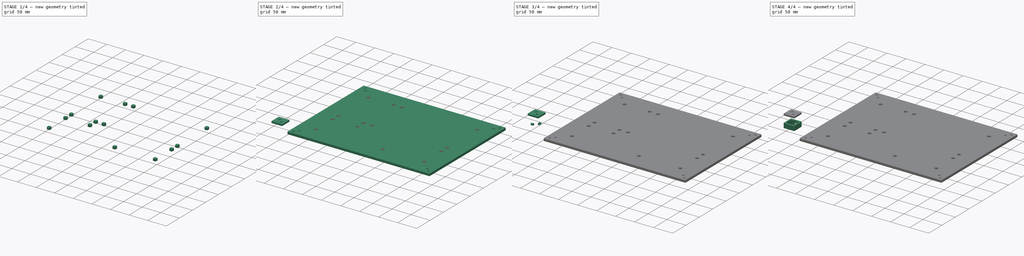
[diagram: build sequence overview — one tinted view per stage of 4, left to right]
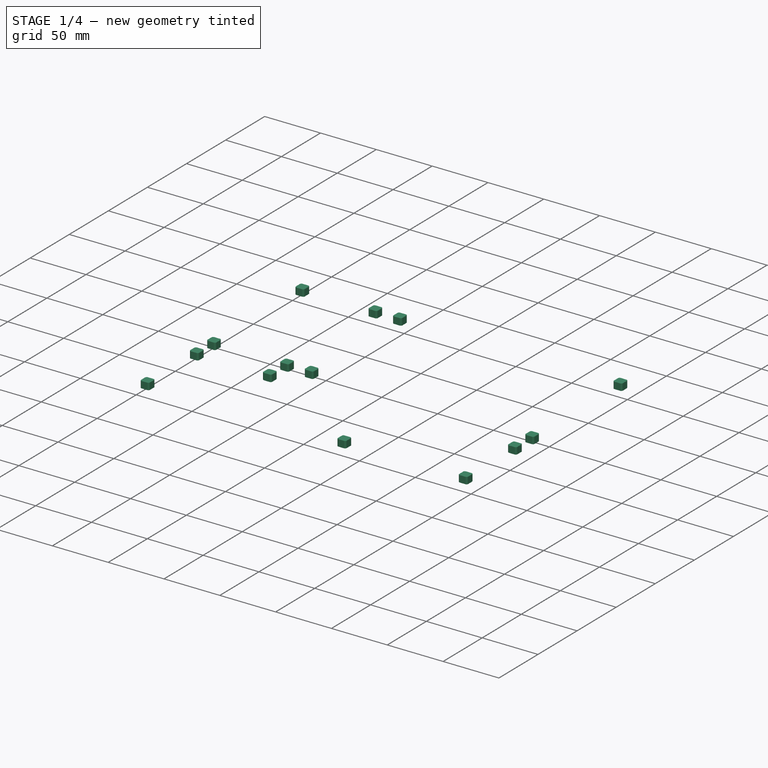
[diagram: stage 1 of 4 — iso view after this stage's code; geometry added in this stage tinted green]
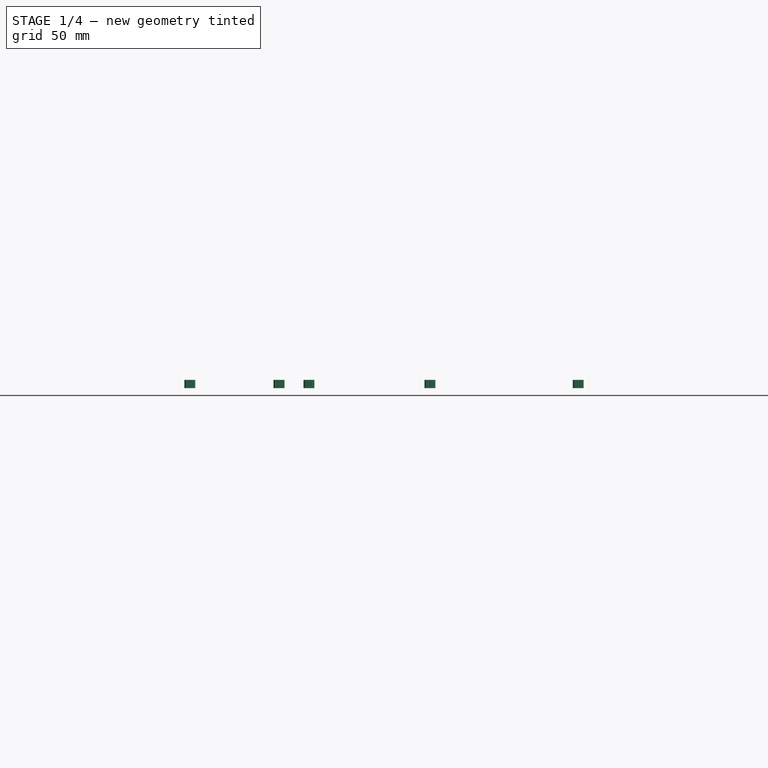
[diagram: stage 1 of 4 — front view after this stage's code; geometry added in this stage tinted green]
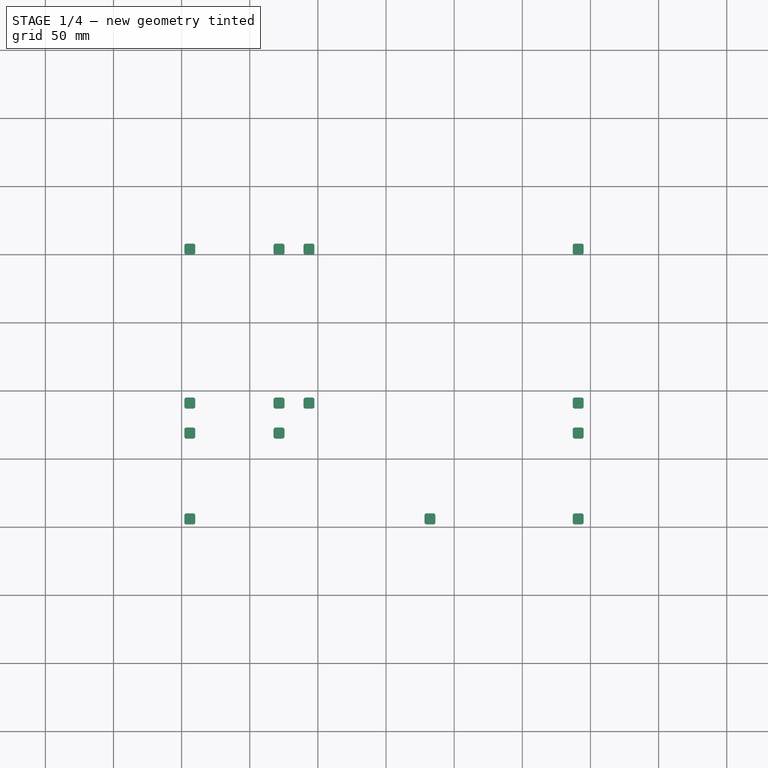
[diagram: stage 1 of 4 — top view after this stage's code; geometry added in this stage tinted green]
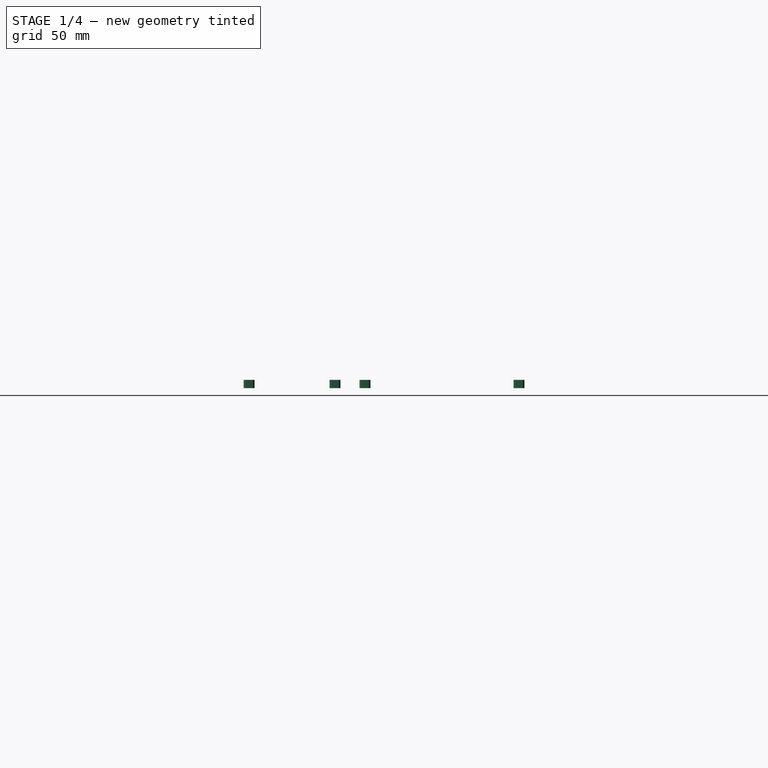
[diagram: stage 1 of 4 — right view after this stage's code; geometry added in this stage tinted green]
FCSTD DOCUMENT  (FreeCAD 1.0R39285 (Git))
Label: pe-haste
License: All rights reserved
LicenseURL: https://en.wikipedia.org/wiki/All_rights_reserved
objects: Sketcher::SketchObject×7, Part::Extrusion×7, Part::Cut×2, Part::MultiFuse×1
note: 24 computed .brp shape members not serialized (recipe doc carries the construction recipe); baked Part::Feature solids carry a one-line shape summary decoded from their .brp

FEATURE [Sketcher::SketchObject] Sketch005
  ArcFitTolerance = 1e-06
  FullyConstrained = true
  MakeInternals = false
  sketch-geometry (44):
    g0: LineSegment [constr] StartX=100 StartY=0 StartZ=0 EndX=397 EndY=0 EndZ=0
    g1: LineSegment [constr] StartX=397 StartY=0 StartZ=0 EndX=397 EndY=210 EndZ=0
    g2: LineSegment [constr] StartX=397 StartY=210 StartZ=0 EndX=100 EndY=210 EndZ=0
    g3: LineSegment [constr] StartX=100 StartY=210 StartZ=0 EndX=100 EndY=0 EndZ=0
    g4: LineSegment StartX=62 StartY=247 StartZ=0 EndX=62 EndY=-37 EndZ=0
    g5: LineSegment StartX=63 StartY=-38 StartZ=0 EndX=434 EndY=-38 EndZ=0
    g6: LineSegment StartX=435 StartY=-37 StartZ=0 EndX=435 EndY=247 EndZ=0
    g7: LineSegment StartX=434 StartY=248 StartZ=0 EndX=63 EndY=248 EndZ=0
    g8: LineSegment [constr] StartX=100 StartY=210 StartZ=0 EndX=100 EndY=248 EndZ=0
    g9: LineSegment [constr] StartX=100 StartY=210 StartZ=0 EndX=62 EndY=210 EndZ=0
    g10: LineSegment [constr] StartX=397 StartY=0 StartZ=0 EndX=435 EndY=0 EndZ=0
    g11: LineSegment [constr] StartX=397 StartY=0 StartZ=0 EndX=397 EndY=-38 EndZ=0
    g12: ArcOfCircle CenterX=63 CenterY=-37 CenterZ=0 NormalX=0 NormalY=0 NormalZ=1 AngleXU=0 Radius=1 StartAngle=3.14159 EndAngle=4.71239
    g13: GeomPoint [constr] X=62 Y=-38 Z=0
    g14: ArcOfCircle CenterX=434 CenterY=-37 CenterZ=0 NormalX=0 NormalY=0 NormalZ=1 AngleXU=0 Radius=1 StartAngle=4.71239 EndAngle=6.28319
    g15: GeomPoint [constr] X=435 Y=-38 Z=0
    g16: ArcOfCircle CenterX=434 CenterY=247 CenterZ=0 NormalX=0 NormalY=0 NormalZ=1 AngleXU=0 Radius=1 StartAngle=1.02e-14 EndAngle=1.5708
    g17: GeomPoint [constr] X=435 Y=248 Z=0
    g18: ArcOfCircle CenterX=63 CenterY=247 CenterZ=0 NormalX=0 NormalY=0 NormalZ=1 AngleXU=0 Radius=1 StartAngle=1.5708 EndAngle=3.14159
    g19: GeomPoint [constr] X=62 Y=248 Z=0
    g20: Circle CenterX=71.5 CenterY=-28.5 CenterZ=0 NormalX=0 NormalY=0 NormalZ=1 AngleXU=0 Radius=2.6
    g21: Circle CenterX=80.8 CenterY=-19.2 CenterZ=0 NormalX=0 NormalY=0 NormalZ=1 AngleXU=0 Radius=2.6
    g22: LineSegment [constr] StartX=71.5 StartY=-28.5 StartZ=0 EndX=71.5 EndY=-38 EndZ=0
    g23: LineSegment [constr] StartX=80.8 StartY=-19.2 StartZ=0 EndX=80.8 EndY=-38 EndZ=0
    g24: LineSegment [constr] StartX=80.8 StartY=-19.2 StartZ=0 EndX=62 EndY=-19.2 EndZ=0
    g25: LineSegment [constr] StartX=71.5 StartY=-28.5 StartZ=0 EndX=62 EndY=-28.5 EndZ=0
    g26: Circle CenterX=425.5 CenterY=-28.5 CenterZ=0 NormalX=0 NormalY=0 NormalZ=1 AngleXU=0 Radius=2.6
    g27: Circle CenterX=416.2 CenterY=-19.2 CenterZ=0 NormalX=0 NormalY=0 NormalZ=1 AngleXU=0 Radius=2.6
    g28: LineSegment [constr] StartX=425.5 StartY=-28.5 StartZ=0 EndX=425.5 EndY=-38 EndZ=0
    g29: LineSegment [constr] StartX=425.5 StartY=-28.5 StartZ=0 EndX=435 EndY=-28.5 EndZ=0
    g30: LineSegment [constr] StartX=416.2 StartY=-19.2 StartZ=0 EndX=435 EndY=-19.2 EndZ=0
    g31: LineSegment [constr] StartX=416.2 StartY=-19.2 StartZ=0 EndX=416.2 EndY=-38 EndZ=0
    g32: Circle CenterX=425.5 CenterY=238.5 CenterZ=0 NormalX=0 NormalY=0 NormalZ=1 AngleXU=0 Radius=2.6
    g33: Circle CenterX=416.2 CenterY=229.2 CenterZ=0 NormalX=0 NormalY=0 NormalZ=1 AngleXU=0 Radius=2.6
    g34: LineSegment [constr] StartX=416.2 StartY=229.2 StartZ=0 EndX=416.2 EndY=248 EndZ=0
    g35: LineSegment [constr] StartX=425.5 StartY=238.5 StartZ=0 EndX=425.5 EndY=248 EndZ=0
    g36: LineSegment [constr] StartX=425.5 StartY=238.5 StartZ=0 EndX=435 EndY=238.5 EndZ=0
    g37: LineSegment [constr] StartX=416.2 StartY=229.2 StartZ=0 EndX=435 EndY=229.2 EndZ=0
    g38: Circle CenterX=71.5 CenterY=238.5 CenterZ=0 NormalX=0 NormalY=0 NormalZ=1 AngleXU=0 Radius=2.6
    g39: Circle CenterX=80.8 CenterY=229.2 CenterZ=0 NormalX=0 NormalY=0 NormalZ=1 AngleXU=0 Radius=2.6
    g40: LineSegment [constr] StartX=80.8 StartY=229.2 StartZ=0 EndX=80.8 EndY=248 EndZ=0
    g41: LineSegment [constr] StartX=71.5 StartY=238.5 StartZ=0 EndX=71.5 EndY=248 EndZ=0
    g42: LineSegment [constr] StartX=71.5 StartY=238.5 StartZ=0 EndX=62 EndY=238.5 EndZ=0
    g43: LineSegment [constr] StartX=80.8 StartY=229.2 StartZ=0 EndX=62 EndY=229.2 EndZ=0
  constraints (124):
    c: Coincident(g0,g1)
    c: Coincident(g1,g2)
    c: Coincident(g2,g3)
    c: Coincident(g3,g0)
    c: Horizontal(g0)
    c: Horizontal(g2)
    c: Vertical(g1)
    c: Vertical(g3)
    c: DistanceY(g3,g3) = 210
    c: DistanceX(g0,g0) = 297
    c: Horizontal(g-1,g0)
    c: DistanceX(g-1,g0) = 100
    c: Vertical(g4)
    c: Vertical(g6)
    c: Horizontal(g5)
    c: Horizontal(g7)
    c: Coincident(g8,g2)
    c: PointOnObject(g8,g7)
    c: Vertical(g8)
    c: Coincident(g9,g2)
    c: PointOnObject(g9,g4)
    c: Horizontal(g9)
    c: Distance(g9) = 38
    c: Equal(g9,g8)
    c: Coincident(g10,g0)
    c: PointOnObject(g10,g6)
    c: Coincident(g11,g0)
    c: PointOnObject(g11,g5)
    c: Vertical(g11)
    c: Equal(g8,g11)
    c: Equal(g9,g10)
    c: Horizontal(g10)
    c: PointOnObject(g13,g4)
    c: PointOnObject(g13,g5)
    c: Tangent(g4,g12) = -1.5708
    c: Tangent(g5,g12) = -1.5708
    c: PointOnObject(g15,g5)
    c: PointOnObject(g15,g6)
    c: Tangent(g5,g14) = -1.5708
    c: Tangent(g6,g14) = -1.5708
    c: PointOnObject(g17,g7)
    c: PointOnObject(g17,g6)
    c: Tangent(g7,g16) = -1.5708
    c: Tangent(g6,g16) = -1.5708
    c: PointOnObject(g19,g4)
    c: PointOnObject(g19,g7)
    c: Tangent(g4,g18) = -1.5708
    c: Tangent(g7,g18) = -1.5708
    c: Diameter(g18) = 2
    c: Equal(g18,g16)
    c: Equal(g16,g14)
    c: Equal(g14,g12)
    c: Coincident(g22,g20)
    c: PointOnObject(g22,g5)
    c: Vertical(g22)
    c: Coincident(g23,g21)
    c: PointOnObject(g23,g5)
    c: Vertical(g23)
    c: Coincident(g24,g21)
    c: PointOnObject(g24,g4)
    c: Horizontal(g24)
    c: Coincident(g25,g20)
    c: PointOnObject(g25,g4)
    c: Horizontal(g25)
    c: DistanceX(g25,g25) = 9.5
    c: DistanceX(g24,g24) = 18.8
    c: Equal(g25,g22)
    c: Equal(g24,g23)
    c: Diameter(g20) = 5.2
    c: Equal(g20,g21)
    c: Coincident(g28,g26)
    c: PointOnObject(g28,g5)
    c: Vertical(g28)
    c: Coincident(g29,g26)
    c: PointOnObject(g29,g6)
    c: Horizontal(g29)
    c: Coincident(g30,g27)
    c: PointOnObject(g30,g6)
    c: Horizontal(g30)
    c: Coincident(g31,g27)
    c: PointOnObject(g31,g5)
    c: Vertical(g31)
    c: Coincident(g34,g33)
    c: PointOnObject(g34,g7)
    c: Vertical(g34)
    c: Coincident(g35,g32)
    c: PointOnObject(g35,g7)
    c: Vertical(g35)
    c: Coincident(g36,g32)
    c: PointOnObject(g36,g6)
    c: Horizontal(g36)
    c: Coincident(g37,g33)
    c: PointOnObject(g37,g6)
    c: Horizontal(g37)
    c: Coincident(g40,g39)
    c: PointOnObject(g40,g7)
    c: Vertical(g40)
    c: Coincident(g41,g38)
    c: PointOnObject(g41,g7)
    c: Vertical(g41)
    c: Coincident(g42,g38)
    c: PointOnObject(g42,g4)
    c: Horizontal(g42)
    c: Coincident(g43,g39)
    c: PointOnObject(g43,g4)
    c: Horizontal(g43)
    c: Equal(g20,g26)
    c: Equal(g26,g27)
    c: Equal(g27,g32)
    c: Equal(g32,g33)
    c: Equal(g33,g38)
    c: Equal(g38,g39)
    c: Equal(g25,g29)
    c: Equal(g29,g36)
    c: Equal(g36,g42)
    c: Equal(g42,g41)
    c: Equal(g36,g35)
    c: Equal(g28,g29)
    c: Equal(g24,g30)
    c: Equal(g30,g37)
    c: Equal(g37,g43)
    c: Equal(g43,g40)
    c: Equal(g34,g37)
    c: Equal(g30,g31)
FEATURE [Part::Extrusion] Extrude005
  Base = -> Sketch005
  Dir = (0,0,1)
  DirMode = 2
  FaceMakerClass = Part::FaceMakerBullseye
  FaceMakerMode = 3
  LengthFwd = 6
  LengthRev = 0
  Solid = true
  Symmetric = false
FEATURE [Sketcher::SketchObject] Sketch006
  ArcFitTolerance = 1e-06
  AttachmentSupport = -> [Extrude005]
  ExternalGeometry = -> [Extrude005]
  FullyConstrained = true
  MakeInternals = false
  MapMode = 5
  Placement = pos=(0,0,6) rot=(0,0,1;0rad)
  sketch-geometry (216):
    g0: LineSegment [constr] StartX=100 StartY=210 StartZ=0 EndX=100 EndY=2.84e-14 EndZ=0
    g1: LineSegment [constr] StartX=100 StartY=1.72e-14 StartZ=0 EndX=397 EndY=1.72e-14 EndZ=0
    g2: LineSegment [constr] StartX=397 StartY=1.72e-14 StartZ=0 EndX=397 EndY=210 EndZ=0
    g3: LineSegment [constr] StartX=397 StartY=210 StartZ=0 EndX=100 EndY=210 EndZ=0
    g4: LineSegment [constr] StartX=100 StartY=105 StartZ=0 EndX=62 EndY=105 EndZ=0
    g5: LineSegment [constr] StartX=397 StartY=105 StartZ=0 EndX=435 EndY=105 EndZ=0
    g6: LineSegment [constr] StartX=100 StartY=1.72e-14 StartZ=0 EndX=397 EndY=1.72e-14 EndZ=0
    g7: LineSegment [constr] StartX=397 StartY=1.72e-14 StartZ=0 EndX=397 EndY=75 EndZ=0
    g8: LineSegment [constr] StartX=397 StartY=75 StartZ=0 EndX=100 EndY=75 EndZ=0
    g9: LineSegment [constr] StartX=100 StartY=75 StartZ=0 EndX=100 EndY=1.42e-14 EndZ=0
    g10: LineSegment StartX=103.5 StartY=2 StartZ=0 EndX=108.5 EndY=2 EndZ=0
    g11: LineSegment StartX=110 StartY=3.5 StartZ=0 EndX=110 EndY=8.5 EndZ=0
    g12: LineSegment StartX=108.5 StartY=10 StartZ=0 EndX=103.5 EndY=10 EndZ=0
    g13: LineSegment StartX=102 StartY=8.5 StartZ=0 EndX=102 EndY=3.5 EndZ=0
    g14: LineSegment [constr] StartX=102 StartY=6 StartZ=0 EndX=110 EndY=6 EndZ=0
    g15: LineSegment [constr] StartX=106 StartY=6 StartZ=0 EndX=106 EndY=1.69e-14 EndZ=0
    g16: ArcOfCircle CenterX=103.5 CenterY=8.5 CenterZ=0 NormalX=0 NormalY=0 NormalZ=1 AngleXU=0 Radius=1.5 StartAngle=1.5708 EndAngle=3.14159
    g17: GeomPoint [constr] X=102 Y=10 Z=0
    g18: ArcOfCircle CenterX=108.5 CenterY=8.5 CenterZ=0 NormalX=0 NormalY=0 NormalZ=1 AngleXU=0 Radius=1.5 StartAngle=5e-16 EndAngle=1.5708
    g19: GeomPoint [constr] X=110 Y=10 Z=0
    g20: ArcOfCircle CenterX=108.5 CenterY=3.5 CenterZ=0 NormalX=0 NormalY=0 NormalZ=1 AngleXU=0 Radius=1.5 StartAngle=4.71239 EndAngle=6.28319
    g21: GeomPoint [constr] X=110 Y=2 Z=0
    g22: ArcOfCircle CenterX=103.5 CenterY=3.5 CenterZ=0 NormalX=0 NormalY=0 NormalZ=1 AngleXU=0 Radius=1.5 StartAngle=3.14159 EndAngle=4.71239
    g23: GeomPoint [constr] X=102 Y=2 Z=0
    g24: LineSegment StartX=387 StartY=8.5 StartZ=0 EndX=387 EndY=3.5 EndZ=0
    g25: LineSegment StartX=388.5 StartY=2 StartZ=0 EndX=393.5 EndY=2 EndZ=0
    g26: LineSegment StartX=395 StartY=3.5 StartZ=0 EndX=395 EndY=8.5 EndZ=0
    g27: LineSegment StartX=393.5 StartY=10 StartZ=0 EndX=388.5 EndY=10 EndZ=0
    g28: ArcOfCircle CenterX=388.5 CenterY=8.5 CenterZ=0 NormalX=0 NormalY=0 NormalZ=1 AngleXU=0 Radius=1.5 StartAngle=1.5708 EndAngle=3.14159
    g29: GeomPoint [constr] X=387 Y=10 Z=0
    g30: ArcOfCircle CenterX=393.5 CenterY=8.5 CenterZ=0 NormalX=0 NormalY=0 NormalZ=1 AngleXU=0 Radius=1.5 StartAngle=-9e-16 EndAngle=1.5708
    g31: GeomPoint [constr] X=395 Y=10 Z=0
    g32: ArcOfCircle CenterX=393.5 CenterY=3.5 CenterZ=0 NormalX=0 NormalY=0 NormalZ=1 AngleXU=0 Radius=1.5 StartAngle=4.71239 EndAngle=6.28319
    g33: GeomPoint [constr] X=395 Y=2 Z=0
    g34: ArcOfCircle CenterX=388.5 CenterY=3.5 CenterZ=0 NormalX=0 NormalY=0 NormalZ=1 AngleXU=0 Radius=1.5 StartAngle=3.14159 EndAngle=4.71239
    g35: GeomPoint [constr] X=387 Y=2 Z=0
    g36: LineSegment [constr] StartX=387 StartY=6 StartZ=0 EndX=395 EndY=6 EndZ=0
    g37: LineSegment [constr] StartX=391 StartY=6 StartZ=0 EndX=391 EndY=1.69e-14 EndZ=0
    g38: LineSegment StartX=278.245 StartY=8.5 StartZ=0 EndX=278.245 EndY=3.5 EndZ=0
    g39: LineSegment StartX=279.745 StartY=2 StartZ=0 EndX=284.745 EndY=2 EndZ=0
    g40: LineSegment StartX=286.245 StartY=3.5 StartZ=0 EndX=286.245 EndY=8.5 EndZ=0
    g41: LineSegment StartX=284.745 StartY=10 StartZ=0 EndX=279.745 EndY=10 EndZ=0
    g42: ArcOfCircle CenterX=279.745 CenterY=8.5 CenterZ=0 NormalX=0 NormalY=0 NormalZ=1 AngleXU=0 Radius=1.5 StartAngle=1.5708 EndAngle=3.14159
    g43: GeomPoint [constr] X=278.245 Y=10 Z=0
    g44: ArcOfCircle CenterX=284.745 CenterY=8.5 CenterZ=0 NormalX=0 NormalY=0 NormalZ=1 AngleXU=0 Radius=1.5 StartAngle=-9e-16 EndAngle=1.5708
    g45: GeomPoint [constr] X=286.245 Y=10 Z=0
    g46: ArcOfCircle CenterX=284.745 CenterY=3.5 CenterZ=0 NormalX=0 NormalY=0 NormalZ=1 AngleXU=0 Radius=1.5 StartAngle=4.71239 EndAngle=6.28319
    g47: GeomPoint [constr] X=286.245 Y=2 Z=0
    g48: ArcOfCircle CenterX=279.745 CenterY=3.5 CenterZ=0 NormalX=0 NormalY=0 NormalZ=1 AngleXU=0 Radius=1.5 StartAngle=3.14159 EndAngle=4.71239
    g49: GeomPoint [constr] X=278.245 Y=2 Z=0
    g50: LineSegment [constr] StartX=278.245 StartY=6 StartZ=0 EndX=286.245 EndY=6 EndZ=0
    g51: LineSegment [constr] StartX=282.245 StartY=6 StartZ=0 EndX=282.245 EndY=1.69e-14 EndZ=0
    g52: LineSegment StartX=102 StartY=71.5 StartZ=0 EndX=102 EndY=66.5 EndZ=0
    g53: LineSegment StartX=103.5 StartY=65 StartZ=0 EndX=108.5 EndY=65 EndZ=0
    g54: LineSegment StartX=110 StartY=66.5 StartZ=0 EndX=110 EndY=71.5 EndZ=0
    g55: LineSegment StartX=108.5 StartY=73 StartZ=0 EndX=103.5 EndY=73 EndZ=0
    g56: LineSegment StartX=167.45 StartY=71.5 StartZ=0 EndX=167.45 EndY=66.5 EndZ=0
    g57: LineSegment StartX=168.95 StartY=65 StartZ=0 EndX=173.95 EndY=65 EndZ=0
    g58: LineSegment StartX=175.45 StartY=66.5 StartZ=0 EndX=175.45 EndY=71.5 EndZ=0
    g59: LineSegment StartX=173.95 StartY=73 StartZ=0 EndX=168.95 EndY=73 EndZ=0
    g60: LineSegment StartX=387 StartY=71.5 StartZ=0 EndX=387 EndY=66.5 EndZ=0
    g61: LineSegment StartX=388.5 StartY=65 StartZ=0 EndX=393.5 EndY=65 EndZ=0
    g62: LineSegment StartX=395 StartY=66.5 StartZ=0 EndX=395 EndY=71.5 EndZ=0
    g63: LineSegment StartX=393.5 StartY=73 StartZ=0 EndX=388.5 EndY=73 EndZ=0
    g64: ArcOfCircle CenterX=103.5 CenterY=71.5 CenterZ=0 NormalX=0 NormalY=0 NormalZ=1 AngleXU=0 Radius=1.5 StartAngle=1.5708 EndAngle=3.14159
    g65: GeomPoint [constr] X=102 Y=73 Z=0
    g66: ArcOfCircle CenterX=108.5 CenterY=71.5 CenterZ=0 NormalX=0 NormalY=0 NormalZ=1 AngleXU=0 Radius=1.5 StartAngle=-2.7e-15 EndAngle=1.5708
    g67: GeomPoint [constr] X=110 Y=73 Z=0
    g68: ArcOfCircle CenterX=108.5 CenterY=66.5 CenterZ=0 NormalX=0 NormalY=0 NormalZ=1 AngleXU=0 Radius=1.5 StartAngle=4.71239 EndAngle=6.28319
    g69: GeomPoint [constr] X=110 Y=65 Z=0
    g70: ArcOfCircle CenterX=103.5 CenterY=66.5 CenterZ=0 NormalX=0 NormalY=0 NormalZ=1 AngleXU=0 Radius=1.5 StartAngle=3.14159 EndAngle=4.71239
    g71: GeomPoint [constr] X=102 Y=65 Z=0
    g72: ArcOfCircle CenterX=168.95 CenterY=71.5 CenterZ=0 NormalX=0 NormalY=0 NormalZ=1 AngleXU=0 Radius=1.5 StartAngle=1.5708 EndAngle=3.14159
    g73: GeomPoint [constr] X=167.45 Y=73 Z=0
    g74: ArcOfCircle CenterX=173.95 CenterY=71.5 CenterZ=0 NormalX=0 NormalY=0 NormalZ=1 AngleXU=0 Radius=1.5 StartAngle=2e-16 EndAngle=1.5708
    g75: GeomPoint [constr] X=175.45 Y=73 Z=0
    g76: ArcOfCircle CenterX=173.95 CenterY=66.5 CenterZ=0 NormalX=0 NormalY=0 NormalZ=1 AngleXU=0 Radius=1.5 StartAngle=4.71239 EndAngle=6.28319
    g77: GeomPoint [constr] X=175.45 Y=65 Z=0
    g78: ArcOfCircle CenterX=168.95 CenterY=66.5 CenterZ=0 NormalX=0 NormalY=0 NormalZ=1 AngleXU=0 Radius=1.5 StartAngle=3.14159 EndAngle=4.71239
    g79: GeomPoint [constr] X=167.45 Y=65 Z=0
    g80: ArcOfCircle CenterX=388.5 CenterY=66.5 CenterZ=0 NormalX=0 NormalY=0 NormalZ=1 AngleXU=0 Radius=1.5 StartAngle=3.14159 EndAngle=4.71239
    g81: GeomPoint [constr] X=387 Y=65 Z=0
    g82: ArcOfCircle CenterX=388.5 CenterY=71.5 CenterZ=0 NormalX=0 NormalY=0 NormalZ=1 AngleXU=0 Radius=1.5 StartAngle=1.5708 EndAngle=3.14159
    g83: GeomPoint [constr] X=387 Y=73 Z=0
    g84: ArcOfCircle CenterX=393.5 CenterY=71.5 CenterZ=0 NormalX=0 NormalY=0 NormalZ=1 AngleXU=0 Radius=1.5 StartAngle=-1.8e-15 EndAngle=1.5708
    g85: GeomPoint [constr] X=395 Y=73 Z=0
    g86: ArcOfCircle CenterX=393.5 CenterY=66.5 CenterZ=0 NormalX=0 NormalY=0 NormalZ=1 AngleXU=0 Radius=1.5 StartAngle=4.71239 EndAngle=6.28319
    g87: GeomPoint [constr] X=395 Y=65 Z=0
    g88: LineSegment [constr] StartX=102 StartY=69 StartZ=0 EndX=110 EndY=69 EndZ=0
    g89: LineSegment [constr] StartX=167.45 StartY=69 StartZ=0 EndX=175.45 EndY=69 EndZ=0
    g90: LineSegment [constr] StartX=387 StartY=69 StartZ=0 EndX=395 EndY=69 EndZ=0
    g91: LineSegment [constr] StartX=106 StartY=69 StartZ=0 EndX=106 EndY=75 EndZ=0
    g92: LineSegment [constr] StartX=391 StartY=69 StartZ=0 EndX=391 EndY=75 EndZ=0
    g93: LineSegment [constr] StartX=171.45 StartY=69 StartZ=0 EndX=171.45 EndY=75 EndZ=0
    g94: LineSegment [constr] StartX=177.455 StartY=85 StartZ=0 EndX=177.455 EndY=210 EndZ=0
    g95: LineSegment [constr] StartX=177.455 StartY=210 StartZ=0 EndX=100 EndY=210 EndZ=0
    g96: LineSegment [constr] StartX=100 StartY=210 StartZ=0 EndX=100 EndY=85 EndZ=0
    g97: LineSegment [constr] StartX=100 StartY=85 StartZ=0 EndX=177.455 EndY=85 EndZ=0
    g98: LineSegment [constr] StartX=100 StartY=75 StartZ=0 EndX=100 EndY=85 EndZ=0
    g99: LineSegment [constr] StartX=187.455 StartY=210 StartZ=0 EndX=187.455 EndY=85 EndZ=0
    g100: LineSegment [constr] StartX=187.455 StartY=85 StartZ=0 EndX=397 EndY=85 EndZ=0
    g101: LineSegment [constr] StartX=397 StartY=85 StartZ=0 EndX=397 EndY=210 EndZ=0
    g102: LineSegment [constr] StartX=397 StartY=210 StartZ=0 EndX=187.455 EndY=210 EndZ=0
    g103: LineSegment [constr] StartX=177.455 StartY=210 StartZ=0 EndX=187.455 EndY=210 EndZ=0
    g104: LineSegment StartX=102 StartY=206.5 StartZ=0 EndX=102 EndY=201.5 EndZ=0
    g105: LineSegment StartX=103.5 StartY=200 StartZ=0 EndX=108.5 EndY=200 EndZ=0
    g106: LineSegment StartX=110 StartY=201.5 StartZ=0 EndX=110 EndY=206.5 EndZ=0
    g107: LineSegment StartX=108.5 StartY=208 StartZ=0 EndX=103.5 EndY=208 EndZ=0
    g108: LineSegment StartX=102 StartY=93.5 StartZ=0 EndX=102 EndY=88.5 EndZ=0
    g109: LineSegment StartX=103.5 StartY=87 StartZ=0 EndX=108.5 EndY=87 EndZ=0
    g110: LineSegment StartX=110 StartY=88.5 StartZ=0 EndX=110 EndY=93.5 EndZ=0
    g111: LineSegment StartX=108.5 StartY=95 StartZ=0 EndX=103.5 EndY=95 EndZ=0
    g112: LineSegment StartX=167.455 StartY=206.5 StartZ=0 EndX=167.455 EndY=201.5 EndZ=0
    g113: LineSegment StartX=168.955 StartY=200 StartZ=0 EndX=173.955 EndY=200 EndZ=0
    g114: LineSegment StartX=175.455 StartY=201.5 StartZ=0 EndX=175.455 EndY=206.5 EndZ=0
    g115: LineSegment StartX=173.955 StartY=208 StartZ=0 EndX=168.955 EndY=208 EndZ=0
    g116: LineSegment StartX=167.455 StartY=93.5 StartZ=0 EndX=167.455 EndY=88.5 EndZ=0
    g117: LineSegment StartX=168.955 StartY=87 StartZ=0 EndX=173.955 EndY=87 EndZ=0
    g118: LineSegment StartX=175.455 StartY=88.5 StartZ=0 EndX=175.455 EndY=93.5 EndZ=0
    g119: LineSegment StartX=173.955 StartY=95 StartZ=0 EndX=168.955 EndY=95 EndZ=0
    g120: ArcOfCircle CenterX=103.5 CenterY=206.5 CenterZ=0 NormalX=0 NormalY=0 NormalZ=1 AngleXU=0 Radius=1.5 StartAngle=1.5708 EndAngle=3.14159
    g121: GeomPoint [constr] X=102 Y=208 Z=0
    g122: ArcOfCircle CenterX=108.5 CenterY=206.5 CenterZ=0 NormalX=0 NormalY=0 NormalZ=1 AngleXU=0 Radius=1.5 StartAngle=-6.2e-15 EndAngle=1.5708
    g123: GeomPoint [constr] X=110 Y=208 Z=0
    g124: ArcOfCircle CenterX=108.5 CenterY=201.5 CenterZ=0 NormalX=0 NormalY=0 NormalZ=1 AngleXU=0 Radius=1.5 StartAngle=4.71239 EndAngle=6.28319
    g125: GeomPoint [constr] X=110 Y=200 Z=0
    g126: ArcOfCircle CenterX=103.5 CenterY=201.5 CenterZ=0 NormalX=0 NormalY=0 NormalZ=1 AngleXU=0 Radius=1.5 StartAngle=3.14159 EndAngle=4.71239
    g127: GeomPoint [constr] X=102 Y=200 Z=0
    g128: ArcOfCircle CenterX=103.5 CenterY=93.5 CenterZ=0 NormalX=0 NormalY=0 NormalZ=1 AngleXU=0 Radius=1.5 StartAngle=1.5708 EndAngle=3.14159
    g129: GeomPoint [constr] X=102 Y=95 Z=0
    g130: ArcOfCircle CenterX=108.5 CenterY=93.5 CenterZ=0 NormalX=0 NormalY=0 NormalZ=1 AngleXU=0 Radius=1.5 StartAngle=-4.4e-15 EndAngle=1.5708
    g131: GeomPoint [constr] X=110 Y=95 Z=0
    g132: ArcOfCircle CenterX=108.5 CenterY=88.5 CenterZ=0 NormalX=0 NormalY=0 NormalZ=1 AngleXU=0 Radius=1.5 StartAngle=4.71239 EndAngle=6.28319
    g133: GeomPoint [constr] X=110 Y=87 Z=0
    g134: ArcOfCircle CenterX=103.5 CenterY=88.5 CenterZ=0 NormalX=0 NormalY=0 NormalZ=1 AngleXU=0 Radius=1.5 StartAngle=3.14159 EndAngle=4.71239
    g135: GeomPoint [constr] X=102 Y=87 Z=0
    g136: ArcOfCircle CenterX=168.955 CenterY=206.5 CenterZ=0 NormalX=0 NormalY=0 NormalZ=1 AngleXU=0 Radius=1.5 StartAngle=1.5708 EndAngle=3.14159
    g137: GeomPoint [constr] X=167.455 Y=208 Z=0
    g138: ArcOfCircle CenterX=173.955 CenterY=206.5 CenterZ=0 NormalX=0 NormalY=0 NormalZ=1 AngleXU=0 Radius=1.5 StartAngle=2.9e-15 EndAngle=1.5708
    g139: GeomPoint [constr] X=175.455 Y=208 Z=0
    g140: ArcOfCircle CenterX=173.955 CenterY=201.5 CenterZ=0 NormalX=0 NormalY=0 NormalZ=1 AngleXU=0 Radius=1.5 StartAngle=4.71239 EndAngle=6.28319
    g141: GeomPoint [constr] X=175.455 Y=200 Z=0
    g142: ArcOfCircle CenterX=168.955 CenterY=201.5 CenterZ=0 NormalX=0 NormalY=0 NormalZ=1 AngleXU=0 Radius=1.5 StartAngle=3.14159 EndAngle=4.71239
    g143: GeomPoint [constr] X=167.455 Y=200 Z=0
    g144: ArcOfCircle CenterX=168.955 CenterY=93.5 CenterZ=0 NormalX=0 NormalY=0 NormalZ=1 AngleXU=0 Radius=1.5 StartAngle=1.5708 EndAngle=3.14159
    g145: GeomPoint [constr] X=167.455 Y=95 Z=0
    g146: ArcOfCircle CenterX=173.955 CenterY=93.5 CenterZ=0 NormalX=0 NormalY=0 NormalZ=1 AngleXU=0 Radius=1.5 StartAngle=2.4e-15 EndAngle=1.5708
    g147: GeomPoint [constr] X=175.455 Y=95 Z=0
    g148: ArcOfCircle CenterX=173.955 CenterY=88.5 CenterZ=0 NormalX=0 NormalY=0 NormalZ=1 AngleXU=0 Radius=1.5 StartAngle=4.71239 EndAngle=6.28319
    g149: GeomPoint [constr] X=175.455 Y=87 Z=0
    g150: ArcOfCircle CenterX=168.955 CenterY=88.5 CenterZ=0 NormalX=0 NormalY=0 NormalZ=1 AngleXU=0 Radius=1.5 StartAngle=3.14159 EndAngle=4.71239
    g151: GeomPoint [constr] X=167.455 Y=87 Z=0
    g152: LineSegment [constr] StartX=102 StartY=204 StartZ=0 EndX=110 EndY=204 EndZ=0
    g153: LineSegment [constr] StartX=102 StartY=91 StartZ=0 EndX=110 EndY=91 EndZ=0
    g154: LineSegment [constr] StartX=167.455 StartY=204 StartZ=0 EndX=175.455 EndY=204 EndZ=0
    g155: LineSegment [constr] StartX=167.455 StartY=91 StartZ=0 EndX=175.455 EndY=91 EndZ=0
    g156: LineSegment [constr] StartX=106 StartY=91 StartZ=0 EndX=106 EndY=85 EndZ=0
    g157: LineSegment [constr] StartX=171.455 StartY=91 StartZ=0 EndX=171.455 EndY=85 EndZ=0
    g158: LineSegment [constr] StartX=171.455 StartY=204 StartZ=0 EndX=171.455 EndY=210 EndZ=0
    g159: LineSegment [constr] StartX=106 StartY=204 StartZ=0 EndX=106 EndY=210 EndZ=0
    g160: LineSegment StartX=189.455 StartY=93.5 StartZ=0 EndX=189.455 EndY=88.5 EndZ=0
    g161: LineSegment StartX=190.955 StartY=87 StartZ=0 EndX=195.955 EndY=87 EndZ=0
    g162: LineSegment StartX=197.455 StartY=88.5 StartZ=0 EndX=197.455 EndY=93.5 EndZ=0
    g163: LineSegment StartX=195.955 StartY=95 StartZ=0 EndX=190.955 EndY=95 EndZ=0
    g164: LineSegment StartX=387 StartY=93.5 StartZ=0 EndX=387 EndY=88.5 EndZ=0
    g165: LineSegment StartX=388.5 StartY=87 StartZ=0 EndX=393.5 EndY=87 EndZ=0
    g166: LineSegment StartX=395 StartY=88.5 StartZ=0 EndX=395 EndY=93.5 EndZ=0
    g167: LineSegment StartX=393.5 StartY=95 StartZ=0 EndX=388.5 EndY=95 EndZ=0
    g168: LineSegment StartX=189.455 StartY=206.5 StartZ=0 EndX=189.455 EndY=201.5 EndZ=0
    g169: LineSegment StartX=190.955 StartY=200 StartZ=0 EndX=195.955 EndY=200 EndZ=0
    g170: LineSegment StartX=197.455 StartY=201.5 StartZ=0 EndX=197.455 EndY=206.5 EndZ=0
    g171: LineSegment StartX=195.955 StartY=208 StartZ=0 EndX=190.955 EndY=208 EndZ=0
    g172: LineSegment StartX=387 StartY=206.5 StartZ=0 EndX=387 EndY=201.5 EndZ=0
    g173: LineSegment StartX=388.5 StartY=200 StartZ=0 EndX=393.5 EndY=200 EndZ=0
    g174: LineSegment StartX=395 StartY=201.5 StartZ=0 EndX=395 EndY=206.5 EndZ=0
    g175: LineSegment StartX=393.5 StartY=208 StartZ=0 EndX=388.5 EndY=208 EndZ=0
    g176: ArcOfCircle CenterX=190.955 CenterY=93.5 CenterZ=0 NormalX=0 NormalY=0 NormalZ=1 AngleXU=0 Radius=1.5 StartAngle=1.5708 EndAngle=3.14159
    g177: GeomPoint [constr] X=189.455 Y=95 Z=0
    g178: ArcOfCircle CenterX=195.955 CenterY=93.5 CenterZ=0 NormalX=0 NormalY=0 NormalZ=1 AngleXU=0 Radius=1.5 StartAngle=-2.7e-15 EndAngle=1.5708
    g179: GeomPoint [constr] X=197.455 Y=95 Z=0
    g180: ArcOfCircle CenterX=195.955 CenterY=88.5 CenterZ=0 NormalX=0 NormalY=0 NormalZ=1 AngleXU=0 Radius=1.5 StartAngle=4.71239 EndAngle=6.28319
    g181: GeomPoint [constr] X=197.455 Y=87 Z=0
    g182: ArcOfCircle CenterX=190.955 CenterY=88.5 CenterZ=0 NormalX=0 NormalY=0 NormalZ=1 AngleXU=0 Radius=1.5 StartAngle=3.14159 EndAngle=4.71239
    g183: GeomPoint [constr] X=189.455 Y=87 Z=0
    g184: ArcOfCircle CenterX=388.5 CenterY=88.5 CenterZ=0 NormalX=0 NormalY=0 NormalZ=1 AngleXU=0 Radius=1.5 StartAngle=3.14159 EndAngle=4.71239
    g185: GeomPoint [constr] X=387 Y=87 Z=0
    g186: ArcOfCircle CenterX=388.5 CenterY=93.5 CenterZ=0 NormalX=0 NormalY=0 NormalZ=1 AngleXU=0 Radius=1.5 StartAngle=1.5708 EndAngle=3.14159
    g187: GeomPoint [constr] X=387 Y=95 Z=0
    g188: ArcOfCircle CenterX=393.5 CenterY=93.5 CenterZ=0 NormalX=0 NormalY=0 NormalZ=1 AngleXU=0 Radius=1.5 StartAngle=3.5e-15 EndAngle=1.5708
    g189: GeomPoint [constr] X=395 Y=95 Z=0
    g190: ArcOfCircle CenterX=393.5 CenterY=88.5 CenterZ=0 NormalX=0 NormalY=0 NormalZ=1 AngleXU=0 Radius=1.5 StartAngle=4.71239 EndAngle=6.28319
    g191: GeomPoint [constr] X=395 Y=87 Z=0
    g192: ArcOfCircle CenterX=190.955 CenterY=201.5 CenterZ=0 NormalX=0 NormalY=0 NormalZ=1 AngleXU=0 Radius=1.5 StartAngle=3.14159 EndAngle=4.71239
    g193: GeomPoint [constr] X=189.455 Y=200 Z=0
    g194: ArcOfCircle CenterX=190.955 CenterY=206.5 CenterZ=0 NormalX=0 NormalY=0 NormalZ=1 AngleXU=0 Radius=1.5 StartAngle=1.5708 EndAngle=3.14159
    g195: GeomPoint [constr] X=189.455 Y=208 Z=0
    g196: ArcOfCircle CenterX=195.955 CenterY=206.5 CenterZ=0 NormalX=0 NormalY=0 NormalZ=1 AngleXU=0 Radius=1.5 StartAngle=6e-16 EndAngle=1.5708
    g197: GeomPoint [constr] X=197.455 Y=208 Z=0
    g198: ArcOfCircle CenterX=195.955 CenterY=201.5 CenterZ=0 NormalX=0 NormalY=0 NormalZ=1 AngleXU=0 Radius=1.5 StartAngle=4.71239 EndAngle=6.28319
    g199: GeomPoint [constr] X=197.455 Y=200 Z=0
    g200: ArcOfCircle CenterX=388.5 CenterY=201.5 CenterZ=0 NormalX=0 NormalY=0 NormalZ=1 AngleXU=0 Radius=1.5 StartAngle=3.14159 EndAngle=4.71239
    g201: GeomPoint [constr] X=387 Y=200 Z=0
    g202: ArcOfCircle CenterX=388.5 CenterY=206.5 CenterZ=0 NormalX=0 NormalY=0 NormalZ=1 AngleXU=0 Radius=1.5 StartAngle=1.5708 EndAngle=3.14159
    g203: GeomPoint [constr] X=387 Y=208 Z=0
    g204: ArcOfCircle CenterX=393.5 CenterY=206.5 CenterZ=0 NormalX=0 NormalY=0 NormalZ=1 AngleXU=0 Radius=1.5 StartAngle=1.1e-15 EndAngle=1.5708
    g205: GeomPoint [constr] X=395 Y=208 Z=0
    g206: ArcOfCircle CenterX=393.5 CenterY=201.5 CenterZ=0 NormalX=0 NormalY=0 NormalZ=1 AngleXU=0 Radius=1.5 StartAngle=4.71239 EndAngle=6.28319
    g207: GeomPoint [constr] X=395 Y=200 Z=0
    g208: LineSegment [constr] StartX=189.455 StartY=91 StartZ=0 EndX=197.455 EndY=91 EndZ=0
    g209: LineSegment [constr] StartX=387 StartY=91 StartZ=0 EndX=395 EndY=91 EndZ=0
    g210: LineSegment [constr] StartX=189.455 StartY=204 StartZ=0 EndX=197.455 EndY=204 EndZ=0
    g211: LineSegment [constr] StartX=387 StartY=204 StartZ=0 EndX=395 EndY=204 EndZ=0
    g212: LineSegment [constr] StartX=391 StartY=204 StartZ=0 EndX=391 EndY=210 EndZ=0
    g213: LineSegment [constr] StartX=193.455 StartY=204 StartZ=0 EndX=193.455 EndY=210 EndZ=0
    g214: LineSegment [constr] StartX=193.455 StartY=91 StartZ=0 EndX=193.455 EndY=85 EndZ=0
    g215: LineSegment [constr] StartX=391 StartY=91 StartZ=0 EndX=391 EndY=85 EndZ=0
  constraints (517):
    c: Coincident(g0,g1)
    c: Coincident(g1,g2)
    c: Coincident(g2,g3)
    c: Coincident(g3,g0)
    c: Vertical(g0)
    c: Vertical(g2)
    c: Horizontal(g1)
    c: Horizontal(g3)
    c: Distance(g0,g2) = 297
    c: Distance(g1,g3) = 210
    c: Symmetric(g0,g0,g4)
    c: Symmetric(g-3,g-3,g4)
    c: Horizontal(g4)
    c: Symmetric(g2,g2,g5)
    c: Symmetric(g-4,g-4,g5)
    c: Equal(g4,g5)
    c: Coincident(g6,g7)
    c: Coincident(g7,g8)
    c: Coincident(g8,g9)
    c: Coincident(g9,g6)
    c: Horizontal(g6)
    c: Horizontal(g8)
    c: Vertical(g7)
    c: Vertical(g9)
    c: Distance(g6,g8) = 75
    c: Coincident(g6,g0)
    c: Vertical(g6,g1)
    c: Horizontal(g10)
    c: Horizontal(g12)
    c: Vertical(g11)
    c: Vertical(g13)
    c: Distance(g21,g23) = 8
    c: Distance(g23,g17) = 8
    c: Symmetric(g17,g23,g14)
    c: Symmetric(g21,g19,g14)
    c: Symmetric(g14,g14,g15)
    c: PointOnObject(g15,g6)
    c: Vertical(g15)
    c: DistanceY(g15,g15) = 6
    c: DistanceX(g6,g15) = 6
    c: PointOnObject(g17,g13)
    c: PointOnObject(g17,g12)
    c: Tangent(g13,g16) = -1.5708
    c: Tangent(g12,g16) = -1.5708
    c: PointOnObject(g19,g12)
    c: PointOnObject(g19,g11)
    c: Tangent(g12,g18) = -1.5708
    c: Tangent(g11,g18) = -1.5708
    c: PointOnObject(g21,g11)
    c: PointOnObject(g21,g10)
    c: Tangent(g11,g20) = -1.5708
    c: Tangent(g10,g20) = -1.5708
    c: PointOnObject(g23,g10)
    c: PointOnObject(g23,g13)
    c: Tangent(g10,g22) = -1.5708
    c: Tangent(g13,g22) = -1.5708
    c: Diameter(g16) = 3
    c: Equal(g16,g18)
    c: Equal(g18,g20)
    c: Equal(g20,g22)
    c: Vertical(g24)
    c: Vertical(g26)
    c: Horizontal(g25)
    c: Horizontal(g27)
    c: PointOnObject(g29,g24)
    c: PointOnObject(g29,g27)
    c: Tangent(g24,g28) = -1.5708
    c: Tangent(g27,g28) = -1.5708
    c: PointOnObject(g31,g27)
    c: PointOnObject(g31,g26)
    c: Tangent(g27,g30) = -1.5708
    c: Tangent(g26,g30) = -1.5708
    c: PointOnObject(g33,g26)
    c: PointOnObject(g33,g25)
    c: Tangent(g26,g32) = -1.5708
    c: Tangent(g25,g32) = -1.5708
    c: PointOnObject(g35,g25)
    c: PointOnObject(g35,g24)
    c: Tangent(g25,g34) = -1.5708
    c: Tangent(g24,g34) = -1.5708
    c: Equal(g12,g27)
    c: Equal(g13,g24)
    c: Symmetric(g24,g24,g36)
    c: Symmetric(g26,g26,g36)
    c: Equal(g28,g30)
    c: Equal(g30,g32)
    c: Equal(g32,g34)
    c: Equal(g34,g16)
    c: Symmetric(g36,g36,g37)
    c: PointOnObject(g37,g6)
    c: Vertical(g37)
    c: DistanceY(g37,g37) = 6
    c: DistanceX(g37,g6) = 6
    c: Vertical(g38)
    c: Vertical(g40)
    c: Horizontal(g39)
    c: Horizontal(g41)
    c: PointOnObject(g43,g38)
    c: PointOnObject(g43,g41)
    c: Tangent(g38,g42) = -1.5708
    c: Tangent(g41,g42) = -1.5708
    c: PointOnObject(g45,g41)
    c: PointOnObject(g45,g40)
    c: Tangent(g41,g44) = -1.5708
    c: Tangent(g40,g44) = -1.5708
    c: PointOnObject(g47,g40)
    c: PointOnObject(g47,g39)
    c: Tangent(g40,g46) = -1.5708
    c: Tangent(g39,g46) = -1.5708
    c: PointOnObject(g49,g38)
    c: PointOnObject(g49,g39)
    c: Tangent(g38,g48) = -1.5708
    c: Tangent(g39,g48) = -1.5708
    c: Equal(g13,g38)
    c: Equal(g12,g41)
    c: Equal(g42,g44)
    c: Equal(g44,g46)
    c: Equal(g46,g48)
    c: Equal(g48,g16)
    c: Symmetric(g38,g38,g50)
    c: Symmetric(g40,g40,g50)
    c: Symmetric(g50,g50,g51)
    c: PointOnObject(g51,g6)
    c: Vertical(g51)
    c: DistanceY(g51,g51) = 6
    c: DistanceX(g6,g51) = 182.245
    c: Vertical(g52)
    c: Vertical(g54)
    c: Horizontal(g53)
    c: Horizontal(g55)
    c: Vertical(g56)
    c: Vertical(g58)
    c: Horizontal(g57)
    c: Horizontal(g59)
    c: Vertical(g60)
    c: Vertical(g62)
    c: Horizontal(g61)
    c: Horizontal(g63)
    c: PointOnObject(g65,g52)
    c: PointOnObject(g65,g55)
    c: Tangent(g52,g64) = -1.5708
    c: Tangent(g55,g64) = -1.5708
    c: PointOnObject(g67,g55)
    c: PointOnObject(g67,g54)
    c: Tangent(g55,g66) = -1.5708
    c: Tangent(g54,g66) = -1.5708
    c: PointOnObject(g69,g54)
    c: PointOnObject(g69,g53)
    c: Tangent(g54,g68) = -1.5708
    c: Tangent(g53,g68) = -1.5708
    c: PointOnObject(g71,g53)
    c: PointOnObject(g71,g52)
    c: Tangent(g53,g70) = -1.5708
    c: Tangent(g52,g70) = -1.5708
    c: PointOnObject(g73,g56)
    c: PointOnObject(g73,g59)
    c: Tangent(g56,g72) = -1.5708
    c: Tangent(g59,g72) = -1.5708
    c: PointOnObject(g75,g59)
    c: PointOnObject(g75,g58)
    c: Tangent(g59,g74) = -1.5708
    c: Tangent(g58,g74) = -1.5708
    c: PointOnObject(g77,g58)
    c: PointOnObject(g77,g57)
    c: Tangent(g58,g76) = -1.5708
    c: Tangent(g57,g76) = -1.5708
    c: PointOnObject(g79,g57)
    c: PointOnObject(g79,g56)
    c: Tangent(g57,g78) = -1.5708
    c: Tangent(g56,g78) = -1.5708
    c: PointOnObject(g81,g61)
    c: PointOnObject(g81,g60)
    c: Tangent(g61,g80) = -1.5708
    c: Tangent(g60,g80) = -1.5708
    c: PointOnObject(g83,g63)
    c: PointOnObject(g83,g60)
    c: Tangent(g63,g82) = -1.5708
    c: Tangent(g60,g82) = -1.5708
    c: PointOnObject(g85,g63)
    c: PointOnObject(g85,g62)
    c: Tangent(g63,g84) = -1.5708
    c: Tangent(g62,g84) = -1.5708
    c: PointOnObject(g87,g62)
    c: PointOnObject(g87,g61)
    c: Tangent(g62,g86) = -1.5708
    c: Tangent(g61,g86) = -1.5708
    c: Equal(g84,g86)
    c: Equal(g86,g80)
    c: Equal(g80,g82)
    c: Equal(g82,g74)
    c: Equal(g74,g76)
    c: Equal(g76,g78)
    c: Equal(g78,g72)
    c: Equal(g72,g66)
    c: Equal(g66,g68)
    c: Equal(g68,g70)
    c: Equal(g70,g64)
    c: Equal(g64,g16)
    c: Equal(g13,g52)
    c: Equal(g52,g56)
    c: Equal(g56,g60)
    c: Equal(g63,g59)
    c: Equal(g59,g55)
    c: Equal(g55,g12)
    c: Symmetric(g52,g52,g88)
    c: Symmetric(g54,g54,g88)
    c: Symmetric(g56,g56,g89)
    c: Symmetric(g58,g58,g89)
    c: Symmetric(g60,g60,g90)
    c: Symmetric(g62,g62,g90)
    c: Symmetric(g88,g88,g91)
    c: PointOnObject(g91,g8)
    c: Vertical(g91)
    c: Symmetric(g90,g90,g92)
    c: PointOnObject(g92,g8)
    c: Vertical(g92)
    c: Horizontal(g90,g89)
    c: Horizontal(g89,g88)
    c: DistanceY(g91,g91) = 6
    c: DistanceX(g8,g91) = 6
    c: DistanceX(g92,g7) = 6
    c: Symmetric(g89,g89,g93)
    c: PointOnObject(g93,g8)
    c: Vertical(g93)
    c: DistanceX(g8,g93) = 71.45
    c: Coincident(g94,g95)
    c: Coincident(g95,g96)
    c: Coincident(g96,g97)
    c: Coincident(g97,g94)
    c: Vertical(g94)
    c: Vertical(g96)
    c: Horizontal(g95)
    c: Horizontal(g97)
    c: Coincident(g98,g8)
    c: Vertical(g98)
    c: DistanceY(g98,g98) = 10
    c: Coincident(g96,g98)
    c: DistanceY(g96,g96) = 125
    c: DistanceX(g95,g95) = 77.455
    c: Coincident(g99,g100)
    c: Coincident(g100,g101)
    c: Coincident(g101,g102)
    c: Coincident(g102,g99)
    c: Vertical(g99)
    c: Vertical(g101)
    c: Horizontal(g100)
    c: Horizontal(g102)
    c: Coincident(g103,g94)
    c: Coincident(g103,g99)
    c: Horizontal(g103)
    c: DistanceX(g103,g103) = 10
    c: Horizontal(g94,g99)
    c: DistanceX(g100,g100) = 209.545
    c: Vertical(g104)
    c: Vertical(g106)
    c: Horizontal(g105)
    c: Horizontal(g107)
    c: Vertical(g108)
    c: Vertical(g110)
    c: Horizontal(g109)
    c: Horizontal(g111)
    c: Vertical(g112)
    c: Vertical(g114)
    c: Horizontal(g113)
    c: Horizontal(g115)
    c: Vertical(g116)
    c: Vertical(g118)
    c: Horizontal(g117)
    c: Horizontal(g119)
    c: PointOnObject(g121,g104)
    c: PointOnObject(g121,g107)
    c: Tangent(g104,g120) = -1.5708
    c: Tangent(g107,g120) = -1.5708
    c: PointOnObject(g123,g107)
    c: PointOnObject(g123,g106)
    c: Tangent(g107,g122) = -1.5708
    c: Tangent(g106,g122) = -1.5708
    c: PointOnObject(g125,g106)
    c: PointOnObject(g125,g105)
    c: Tangent(g106,g124) = -1.5708
    c: Tangent(g105,g124) = -1.5708
    c: PointOnObject(g127,g105)
    c: PointOnObject(g127,g104)
    c: Tangent(g105,g126) = -1.5708
    c: Tangent(g104,g126) = -1.5708
    c: PointOnObject(g129,g108)
    c: PointOnObject(g129,g111)
    c: Tangent(g108,g128) = -1.5708
    c: Tangent(g111,g128) = -1.5708
    c: PointOnObject(g131,g111)
    c: PointOnObject(g131,g110)
    c: Tangent(g111,g130) = -1.5708
    c: Tangent(g110,g130) = -1.5708
    c: PointOnObject(g133,g110)
    c: PointOnObject(g133,g109)
    c: Tangent(g110,g132) = -1.5708
    c: Tangent(g109,g132) = -1.5708
    c: PointOnObject(g135,g109)
    c: PointOnObject(g135,g108)
    c: Tangent(g109,g134) = -1.5708
    c: Tangent(g108,g134) = -1.5708
    c: PointOnObject(g137,g112)
    c: PointOnObject(g137,g115)
    c: Tangent(g112,g136) = -1.5708
    c: Tangent(g115,g136) = -1.5708
    c: PointOnObject(g139,g115)
    c: PointOnObject(g139,g114)
    c: Tangent(g115,g138) = -1.5708
    c: Tangent(g114,g138) = -1.5708
    c: PointOnObject(g141,g114)
    c: PointOnObject(g141,g113)
    c: Tangent(g114,g140) = -1.5708
    c: Tangent(g113,g140) = -1.5708
    c: PointOnObject(g143,g113)
    c: PointOnObject(g143,g112)
    c: Tangent(g113,g142) = -1.5708
    c: Tangent(g112,g142) = -1.5708
    c: PointOnObject(g145,g116)
    c: PointOnObject(g145,g119)
    c: Tangent(g116,g144) = -1.5708
    c: Tangent(g119,g144) = -1.5708
    c: PointOnObject(g147,g119)
    c: PointOnObject(g147,g118)
    c: Tangent(g119,g146) = -1.5708
    c: Tangent(g118,g146) = -1.5708
    c: PointOnObject(g149,g118)
    c: PointOnObject(g149,g117)
    c: Tangent(g118,g148) = -1.5708
    c: Tangent(g117,g148) = -1.5708
    c: PointOnObject(g151,g117)
    c: PointOnObject(g151,g116)
    c: Tangent(g117,g150) = -1.5708
    c: Tangent(g116,g150) = -1.5708
    c: Equal(g146,g148)
    c: Equal(g148,g150)
    c: Equal(g150,g144)
    c: Equal(g144,g140)
    c: Equal(g140,g142)
    c: Equal(g142,g138)
    c: Equal(g138,g136)
    c: Equal(g136,g132)
    c: Equal(g132,g134)
    c: Equal(g134,g130)
    c: Equal(g130,g128)
    c: Equal(g128,g124)
    c: Equal(g124,g122)
    c: Equal(g122,g126)
    c: Equal(g126,g120)
    c: Equal(g120,g16)
    c: Equal(g13,g104)
    c: Equal(g104,g108)
    c: Equal(g108,g112)
    c: Equal(g112,g116)
    c: Equal(g119,g115)
    c: Equal(g115,g111)
    c: Equal(g111,g107)
    c: Equal(g107,g12)
    c: Symmetric(g104,g104,g152)
    c: Symmetric(g106,g106,g152)
    c: Symmetric(g108,g108,g153)
    c: Symmetric(g110,g110,g153)
    c: Symmetric(g112,g112,g154)
    c: Symmetric(g114,g114,g154)
    c: Symmetric(g116,g116,g155)
    c: Symmetric(g118,g118,g155)
    c: Symmetric(g153,g153,g156)
    c: PointOnObject(g156,g97)
    c: Vertical(g156)
    c: Symmetric(g155,g155,g157)
    c: PointOnObject(g157,g97)
    c: Vertical(g157)
    c: Symmetric(g154,g154,g158)
    c: PointOnObject(g158,g95)
    c: Vertical(g158)
    c: Symmetric(g152,g152,g159)
    c: PointOnObject(g159,g95)
    c: Vertical(g159)
    c: DistanceY(g156,g156) = 6
    c: DistanceX(g96,g156) = 6
    c: Vertical(g156,g159)
    c: Equal(g159,g156)
    c: Horizontal(g156,g157)
    c: Horizontal(g159,g158)
    c: DistanceX(g158,g94) = 6
    c: Vertical(g158,g157)
    c: Vertical(g160)
    c: Vertical(g162)
    c: Horizontal(g161)
    c: Horizontal(g163)
    c: Vertical(g164)
    c: Vertical(g166)
    c: Horizontal(g165)
    c: Horizontal(g167)
    c: Vertical(g168)
    c: Vertical(g170)
    c: Horizontal(g169)
    c: Horizontal(g171)
    c: Vertical(g172)
    c: Vertical(g174)
    c: Horizontal(g173)
    c: Horizontal(g175)
    c: PointOnObject(g177,g160)
    c: PointOnObject(g177,g163)
    c: Tangent(g160,g176) = -1.5708
    c: Tangent(g163,g176) = -1.5708
    c: PointOnObject(g179,g163)
    c: PointOnObject(g179,g162)
    c: Tangent(g163,g178) = -1.5708
    c: Tangent(g162,g178) = -1.5708
    c: PointOnObject(g181,g162)
    c: PointOnObject(g181,g161)
    c: Tangent(g162,g180) = -1.5708
    c: Tangent(g161,g180) = -1.5708
    c: PointOnObject(g183,g161)
    c: PointOnObject(g183,g160)
    c: Tangent(g161,g182) = -1.5708
    c: Tangent(g160,g182) = -1.5708
    c: PointOnObject(g185,g165)
    c: PointOnObject(g185,g164)
    c: Tangent(g165,g184) = -1.5708
    c: Tangent(g164,g184) = -1.5708
    c: PointOnObject(g187,g164)
    c: PointOnObject(g187,g167)
    c: Tangent(g164,g186) = -1.5708
    c: Tangent(g167,g186) = -1.5708
    c: PointOnObject(g189,g167)
    c: PointOnObject(g189,g166)
    c: Tangent(g167,g188) = -1.5708
    c: Tangent(g166,g188) = -1.5708
    c: PointOnObject(g191,g166)
    c: PointOnObject(g191,g165)
    c: Tangent(g166,g190) = -1.5708
    c: Tangent(g165,g190) = -1.5708
    c: PointOnObject(g193,g168)
    c: PointOnObject(g193,g169)
    c: Tangent(g168,g192) = -1.5708
    c: Tangent(g169,g192) = -1.5708
    c: PointOnObject(g195,g168)
    c: PointOnObject(g195,g171)
    c: Tangent(g168,g194) = -1.5708
    c: Tangent(g171,g194) = -1.5708
    c: PointOnObject(g197,g171)
    c: PointOnObject(g197,g170)
    c: Tangent(g171,g196) = -1.5708
    c: Tangent(g170,g196) = -1.5708
    c: PointOnObject(g199,g170)
    c: PointOnObject(g199,g169)
    c: Tangent(g170,g198) = -1.5708
    c: Tangent(g169,g198) = -1.5708
    c: PointOnObject(g201,g173)
    c: PointOnObject(g201,g172)
    c: Tangent(g173,g200) = -1.5708
    c: Tangent(g172,g200) = -1.5708
    c: PointOnObject(g203,g172)
    c: PointOnObject(g203,g175)
    c: Tangent(g172,g202) = -1.5708
    c: Tangent(g175,g202) = -1.5708
    c: PointOnObject(g205,g175)
    c: PointOnObject(g205,g174)
    c: Tangent(g175,g204) = -1.5708
    c: Tangent(g174,g204) = -1.5708
    c: PointOnObject(g207,g174)
    c: PointOnObject(g207,g173)
    c: Tangent(g174,g206) = -1.5708
    c: Tangent(g173,g206) = -1.5708
    c: Equal(g206,g204)
    c: Equal(g204,g200)
    c: Equal(g200,g202)
    c: Equal(g202,g198)
    c: Equal(g198,g196)
    c: Equal(g196,g192)
    c: Equal(g192,g194)
    c: Equal(g194,g190)
    c: Equal(g190,g188)
    c: Equal(g188,g186)
    c: Equal(g186,g184)
    c: Equal(g184,g180)
    c: Equal(g180,g178)
    c: Equal(g178,g176)
    c: Equal(g176,g182)
    c: Equal(g182,g16)
    c: Equal(g13,g160)
    c: Equal(g160,g164)
    c: Equal(g164,g168)
    c: Equal(g168,g172)
    c: Equal(g175,g171)
    c: Equal(g171,g167)
    c: Equal(g167,g163)
    c: Equal(g163,g12)
    c: Symmetric(g160,g160,g208)
    c: Symmetric(g162,g162,g208)
    c: Symmetric(g164,g164,g209)
    c: Symmetric(g166,g166,g209)
    c: Symmetric(g168,g168,g210)
    c: Symmetric(g170,g170,g210)
    c: Symmetric(g172,g172,g211)
    c: Symmetric(g174,g174,g211)
    c: Symmetric(g211,g211,g212)
    c: PointOnObject(g212,g102)
    c: Vertical(g212)
    c: Symmetric(g210,g210,g213)
    c: PointOnObject(g213,g102)
    c: Vertical(g213)
    c: Symmetric(g208,g208,g214)
    c: PointOnObject(g214,g100)
    c: Vertical(g214)
    c: Symmetric(g209,g209,g215)
    c: PointOnObject(g215,g100)
    c: Vertical(g215)
    c: DistanceY(g214,g214) = 6
    c: DistanceX(g99,g214) = 6
    c: Vertical(g214,g213)
    c: Equal(g213,g214)
    c: Horizontal(g213,g212)
    c: DistanceX(g212,g101) = 6
    c: Vertical(g212,g215)
    c: Horizontal(g215,g214)
FEATURE [Part::Extrusion] Extrude006
  Base = -> Sketch006
  Dir = (0,0,1)
  DirMode = 2
  FaceMakerClass = Part::FaceMakerBullseye
  FaceMakerMode = 3
  LengthFwd = 0
  LengthRev = 6
  Solid = true
  Symmetric = false
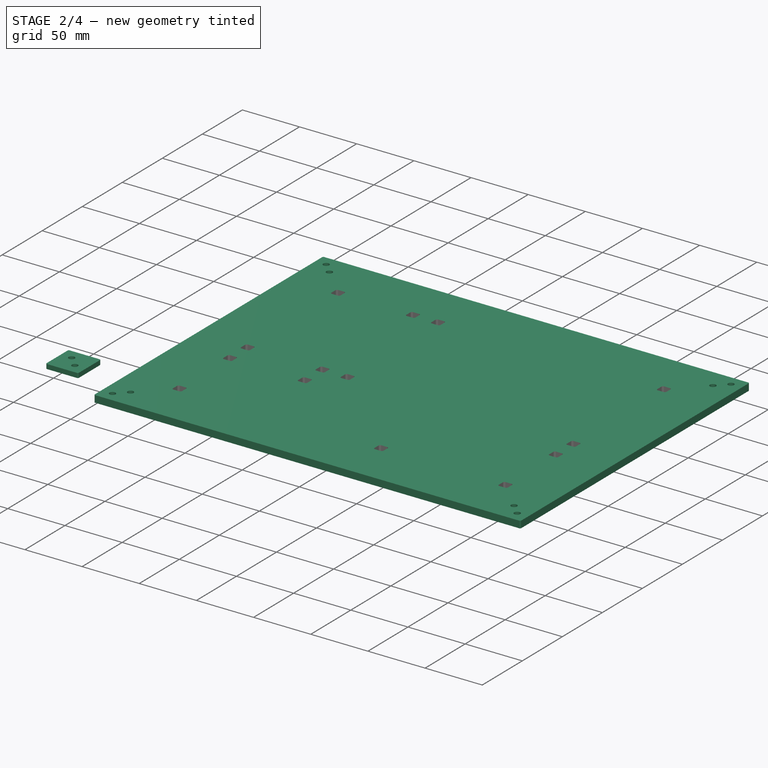
[diagram: stage 2 of 4 — iso view after this stage's code; geometry added in this stage tinted green]
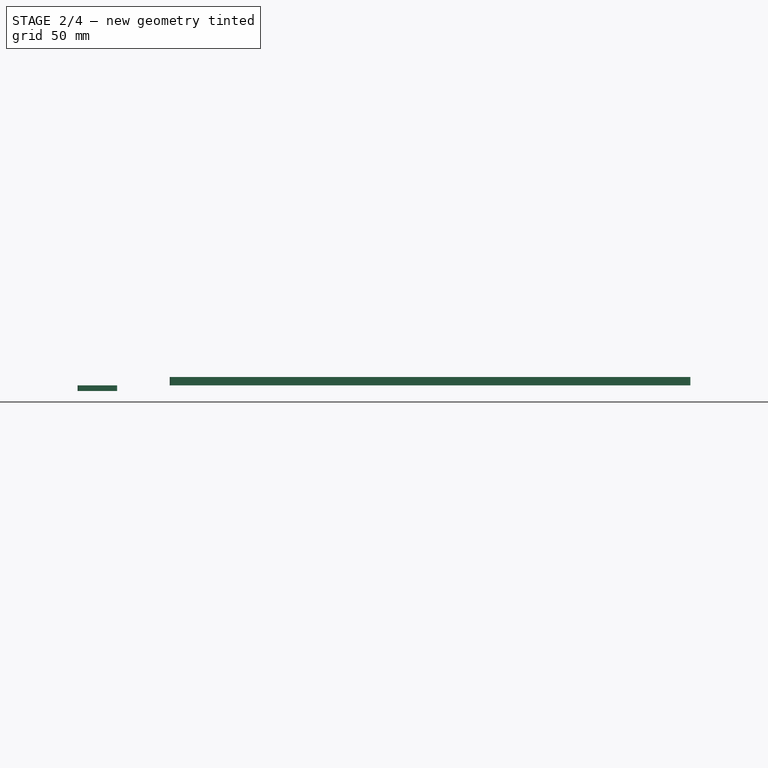
[diagram: stage 2 of 4 — front view after this stage's code; geometry added in this stage tinted green]
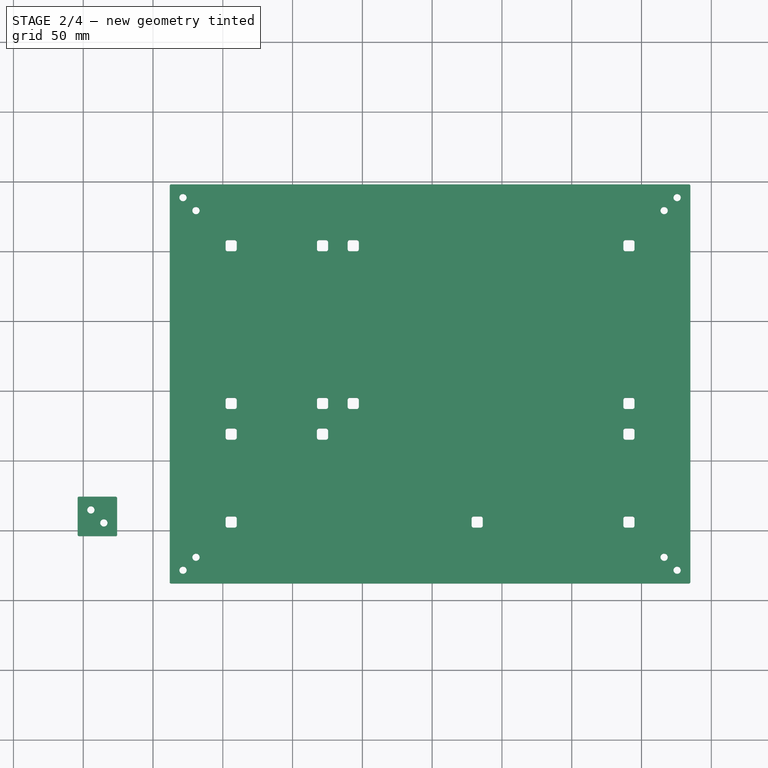
[diagram: stage 2 of 4 — top view after this stage's code; geometry added in this stage tinted green]
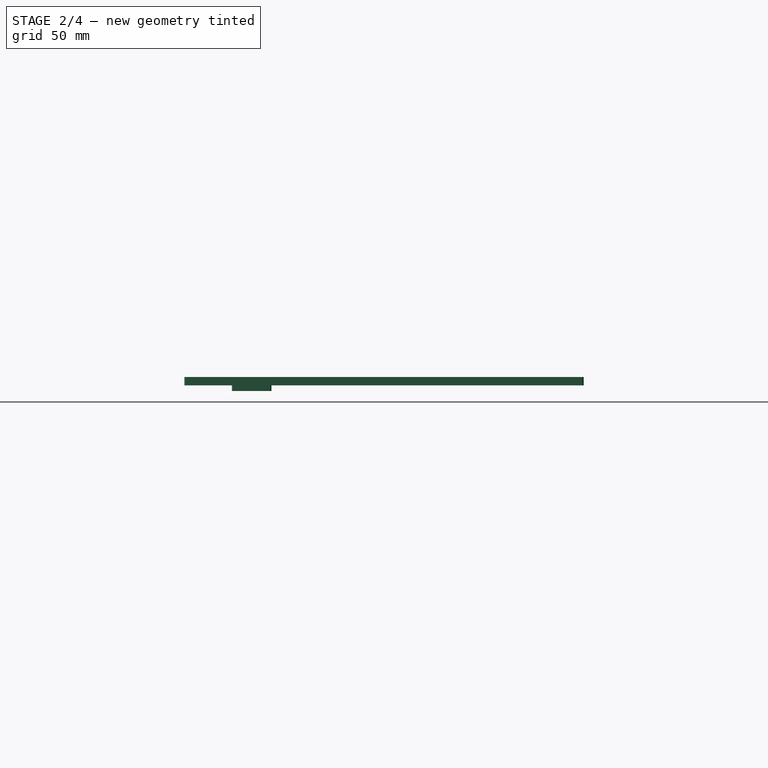
[diagram: stage 2 of 4 — right view after this stage's code; geometry added in this stage tinted green]
FEATURE [Sketcher::SketchObject] Sketch
  ArcFitTolerance = 1e-06
  FullyConstrained = true
  MakeInternals = false
  sketch-geometry (20):
    g0: LineSegment StartX=0 StartY=0 StartZ=0 EndX=20.3 EndY=0 EndZ=0
    g1: LineSegment StartX=20.3 StartY=0 StartZ=0 EndX=20.3 EndY=20.3 EndZ=0
    g2: LineSegment StartX=20.3 StartY=20.3 StartZ=0 EndX=0 EndY=20.3 EndZ=0
    g3: LineSegment StartX=0 StartY=20.3 StartZ=0 EndX=0 EndY=0 EndZ=0
    g4: LineSegment StartX=-3 StartY=-4 StartZ=0 EndX=23.3 EndY=-4 EndZ=0
    g5: LineSegment StartX=24.3 StartY=-3 StartZ=0 EndX=24.3 EndY=23.3 EndZ=0
    g6: LineSegment StartX=23.3 StartY=24.3 StartZ=0 EndX=-3 EndY=24.3 EndZ=0
    g7: LineSegment StartX=-4 StartY=23.3 StartZ=0 EndX=-4 EndY=-3 EndZ=0
    g8: LineSegment [constr] StartX=0 StartY=20.3 StartZ=0 EndX=0 EndY=24.3 EndZ=0
    g9: LineSegment [constr] StartX=0 StartY=20.3 StartZ=0 EndX=-4 EndY=20.3 EndZ=0
    g10: LineSegment [constr] StartX=20.3 StartY=0 StartZ=0 EndX=20.3 EndY=-4 EndZ=0
    g11: LineSegment [constr] StartX=20.3 StartY=0 StartZ=0 EndX=24.3 EndY=0 EndZ=0
    g12: ArcOfCircle CenterX=23.3 CenterY=23.3 CenterZ=0 NormalX=0 NormalY=0 NormalZ=1 AngleXU=0 Radius=1 StartAngle=-1.39746e-11 EndAngle=1.5708
    g13: GeomPoint [constr] X=24.3 Y=24.3 Z=0
    g14: ArcOfCircle CenterX=-3 CenterY=23.3 CenterZ=0 NormalX=0 NormalY=0 NormalZ=1 AngleXU=0 Radius=1 StartAngle=1.5708 EndAngle=3.14159
    g15: GeomPoint [constr] X=-4 Y=24.3 Z=0
    g16: ArcOfCircle CenterX=-3 CenterY=-3 CenterZ=0 NormalX=0 NormalY=0 NormalZ=1 AngleXU=0 Radius=1 StartAngle=3.14159 EndAngle=4.71239
    g17: GeomPoint [constr] X=-4 Y=-4 Z=0
    g18: ArcOfCircle CenterX=23.3 CenterY=-3 CenterZ=0 NormalX=0 NormalY=0 NormalZ=1 AngleXU=0 Radius=1 StartAngle=4.71239 EndAngle=6.28319
    g19: GeomPoint [constr] X=24.3 Y=-4 Z=0
  constraints (51):
    c: Coincident(g0,g1)
    c: Coincident(g1,g2)
    c: Coincident(g2,g3)
    c: Coincident(g3,g0)
    c: Horizontal(g0)
    c: Horizontal(g2)
    c: Vertical(g1)
    c: Vertical(g3)
    c: Distance(g1,g3) = 20.3
    c: Distance(g0,g2) = 20.3
    c: Coincident(g0,g-1)
    c: Horizontal(g4)
    c: Horizontal(g6)
    c: Vertical(g5)
    c: Vertical(g7)
    c: Coincident(g8,g2)
    c: PointOnObject(g8,g6)
    c: Coincident(g9,g2)
    c: PointOnObject(g9,g7)
    c: Horizontal(g9)
    c: Coincident(g10,g0)
    c: PointOnObject(g10,g4)
    c: Vertical(g10)
    c: Coincident(g11,g0)
    c: PointOnObject(g11,g5)
    c: Horizontal(g11)
    c: Vertical(g8)
    c: DistanceY(g8,g8) = 4
    c: DistanceX(g9,g9) = 4
    c: Equal(g8,g11)
    c: Equal(g8,g10)
    c: PointOnObject(g13,g6)
    c: PointOnObject(g13,g5)
    c: Tangent(g6,g12) = -1.5708
    c: Tangent(g5,g12) = -1.5708
    c: PointOnObject(g15,g7)
    c: PointOnObject(g15,g6)
    c: Tangent(g7,g14) = -1.5708
    c: Tangent(g6,g14) = -1.5708
    c: PointOnObject(g17,g7)
    c: PointOnObject(g17,g4)
    c: Tangent(g7,g16) = -1.5708
    c: Tangent(g4,g16) = -1.5708
    c: PointOnObject(g19,g4)
    c: PointOnObject(g19,g5)
    c: Tangent(g4,g18) = -1.5708
    c: Tangent(g5,g18) = -1.5708
    c: Diameter(g12) = 2
    c: Equal(g12,g14)
    c: Equal(g14,g18)
    c: Equal(g18,g16)
FEATURE [Part::Extrusion] Extrude
  Base = -> Sketch
  Dir = (0,0,1)
  DirMode = 2
  FaceMakerClass = Part::FaceMakerBullseye
  FaceMakerMode = 3
  LengthFwd = 12
  LengthRev = 0
  Solid = true
  Symmetric = false
FEATURE [Sketcher::SketchObject] Sketch001
  ArcFitTolerance = 1e-06
  AttachmentSupport = -> [Extrude]
  ExternalGeometry = -> [Extrude]
  FullyConstrained = true
  MakeInternals = false
  MapMode = 5
  Placement = pos=(0,0,0) rot=(1,0,0;3.14159rad)
  sketch-geometry (14):
    g0: LineSegment StartX=24.3 StartY=3 StartZ=0 EndX=24.3 EndY=-23.3 EndZ=0
    g1: LineSegment StartX=23.3 StartY=-24.3 StartZ=0 EndX=-3 EndY=-24.3 EndZ=0
    g2: LineSegment StartX=-4 StartY=-23.3 StartZ=0 EndX=-4 EndY=3 EndZ=0
    g3: LineSegment StartX=-3 StartY=4 StartZ=0 EndX=23.3 EndY=4 EndZ=0
    g4: ArcOfCircle CenterX=-3 CenterY=3 CenterZ=0 NormalX=0 NormalY=0 NormalZ=1 AngleXU=0 Radius=1 StartAngle=1.5708 EndAngle=3.14159
    g5: ArcOfCircle CenterX=23.3 CenterY=3 CenterZ=0 NormalX=0 NormalY=0 NormalZ=1 AngleXU=0 Radius=1 StartAngle=-1.83702e-11 EndAngle=1.5708
    g6: ArcOfCircle CenterX=23.3 CenterY=-23.3 CenterZ=0 NormalX=0 NormalY=0 NormalZ=1 AngleXU=0 Radius=1 StartAngle=4.71239 EndAngle=6.28319
    g7: ArcOfCircle CenterX=-3 CenterY=-23.3 CenterZ=0 NormalX=0 NormalY=0 NormalZ=1 AngleXU=0 Radius=1 StartAngle=3.14159 EndAngle=4.71239
    g8: Circle CenterX=5.5 CenterY=-14.8 CenterZ=0 NormalX=0 NormalY=0 NormalZ=1 AngleXU=0 Radius=2.6
    g9: Circle CenterX=14.8 CenterY=-5.5 CenterZ=0 NormalX=0 NormalY=0 NormalZ=1 AngleXU=0 Radius=2.6
    g10: LineSegment [constr] StartX=14.8 StartY=-5.5 StartZ=0 EndX=14.8 EndY=0 EndZ=0
    g11: LineSegment [constr] StartX=14.8 StartY=-5.5 StartZ=0 EndX=20.3 EndY=-5.5 EndZ=0
    g12: LineSegment [constr] StartX=5.5 StartY=-14.8 StartZ=0 EndX=0 EndY=-14.8 EndZ=0
    g13: LineSegment [constr] StartX=5.5 StartY=-14.8 StartZ=0 EndX=5.5 EndY=-20.3 EndZ=0
  constraints (38):
    c: Coincident(g0,g-9)
    c: Coincident(g0,g-10)
    c: Coincident(g1,g-10)
    c: Coincident(g1,g-7)
    c: Coincident(g2,g-7)
    c: Coincident(g2,g-8)
    c: Coincident(g3,g-8)
    c: Coincident(g3,g-9)
    c: Coincident(g4,g-8)
    c: Coincident(g4,g3)
    c: Coincident(g5,g-9)
    c: Coincident(g5,g3)
    c: Coincident(g6,g-10)
    c: Coincident(g6,g1)
    c: Coincident(g7,g-7)
    c: Coincident(g7,g1)
    c: Horizontal(g4,g2)
    c: Horizontal(g5,g0)
    c: Horizontal(g6,g0)
    c: Horizontal(g7,g2)
    c: Diameter(g8) = 5.2
    c: Equal(g8,g9)
    c: Coincident(g10,g9)
    c: PointOnObject(g10,g-11)
    c: Vertical(g10)
    c: Coincident(g11,g9)
    c: PointOnObject(g11,g-13)
    c: Horizontal(g11)
    c: Coincident(g12,g8)
    c: PointOnObject(g12,g-12)
    c: Horizontal(g12)
    c: Coincident(g13,g8)
    c: PointOnObject(g13,g-14)
    c: Vertical(g13)
    c: Distance(g12) = 5.5
    c: Equal(g12,g13)
    c: Equal(g13,g11)
    c: Equal(g11,g10)
FEATURE [Part::Extrusion] Extrude001
  Base = -> Sketch001
  Dir = (0,0,-1)
  DirMode = 2
  FaceMakerClass = Part::FaceMakerBullseye
  FaceMakerMode = 3
  LengthFwd = 4
  LengthRev = 0
  Solid = true
  Symmetric = false
FEATURE [Part::Cut] Cut001
  Base = -> Extrude005
  Refine = true
  Tool = -> Extrude006
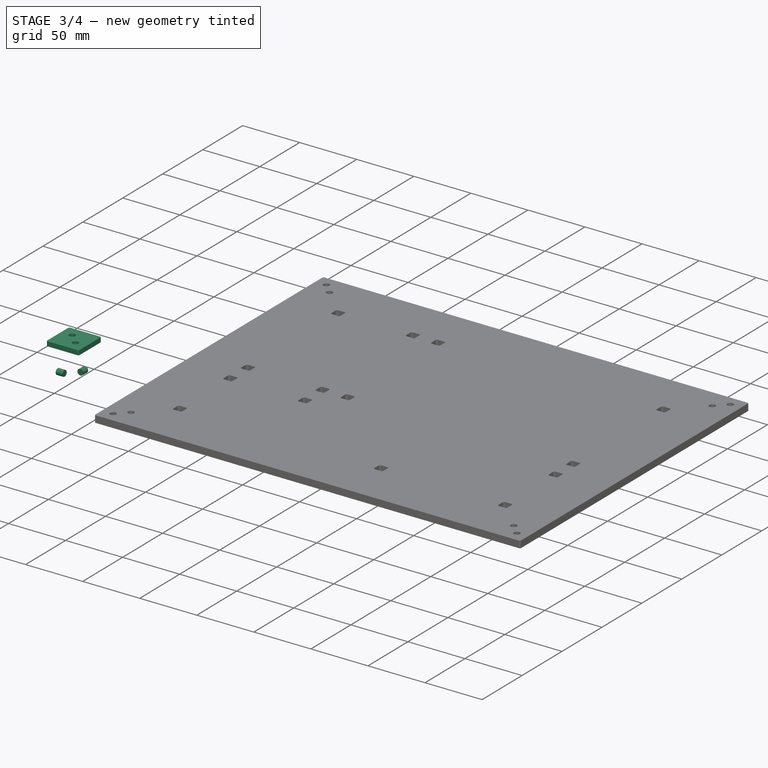
[diagram: stage 3 of 4 — iso view after this stage's code; geometry added in this stage tinted green]
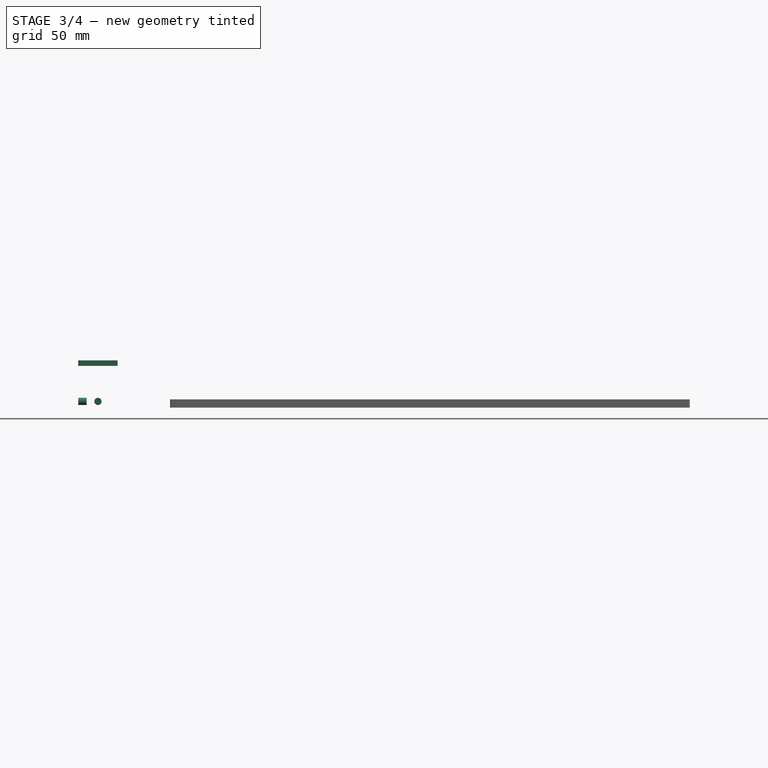
[diagram: stage 3 of 4 — front view after this stage's code; geometry added in this stage tinted green]
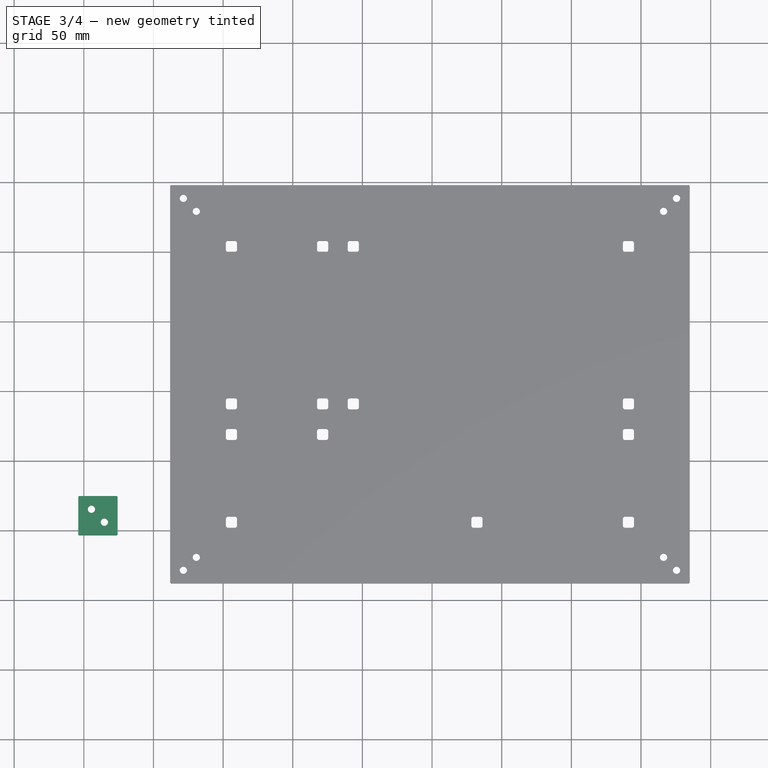
[diagram: stage 3 of 4 — top view after this stage's code; geometry added in this stage tinted green]
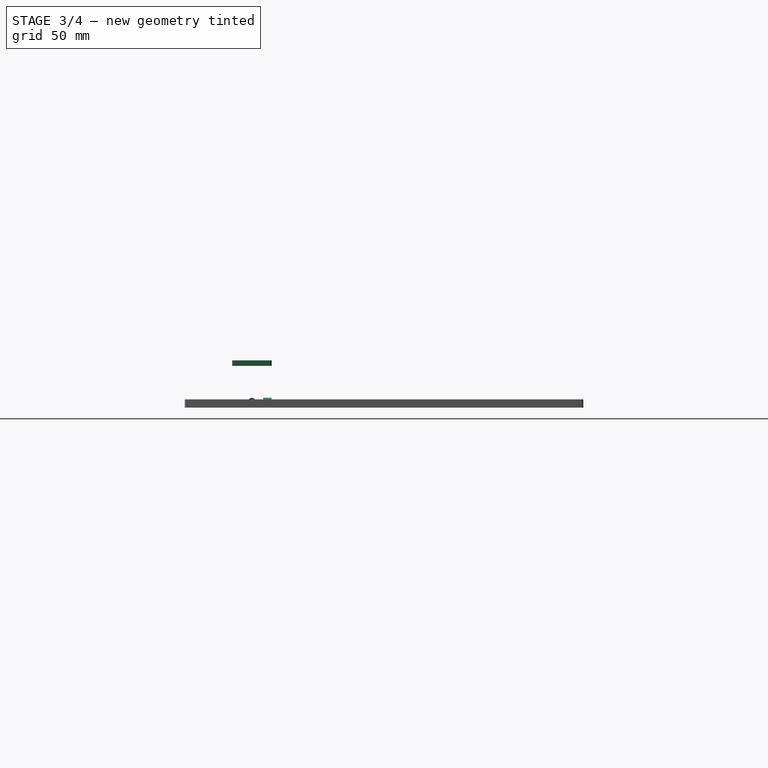
[diagram: stage 3 of 4 — right view after this stage's code; geometry added in this stage tinted green]
FEATURE [Sketcher::SketchObject] Sketch002
  ArcFitTolerance = 1e-06
  AttachmentSupport = -> [Extrude]
  ExternalGeometry = -> [Extrude,Extrude001]
  FullyConstrained = true
  MakeInternals = false
  MapMode = 5
  Placement = pos=(-4,0,0) rot=(0.57735,-0.57735,-0.57735;2.0944rad)
  sketch-geometry (4):
    g0: Circle CenterX=-10.15 CenterY=4.5 CenterZ=0 NormalX=0 NormalY=0 NormalZ=1 AngleXU=0 Radius=2.6
    g1: LineSegment [constr] StartX=-10.15 StartY=4.5 StartZ=0 EndX=3 EndY=4.5 EndZ=0
    g2: LineSegment [constr] StartX=-10.15 StartY=4.5 StartZ=0 EndX=-23.3 EndY=4.5 EndZ=0
    g3: LineSegment [constr] StartX=-10.15 StartY=4.5 StartZ=0 EndX=-10.15 EndY=0 EndZ=0
  constraints (11):
    c: Coincident(g1,g0)
    c: PointOnObject(g1,g-4)
    c: Horizontal(g1)
    c: Coincident(g2,g0)
    c: PointOnObject(g2,g-3)
    c: Horizontal(g2)
    c: Equal(g2,g1)
    c: Coincident(g3,g0)
    c: Symmetric(g-5,g-5,g3)
    c: Diameter(g0) = 5.2
    c: DistanceY(g3,g3) = 4.5
FEATURE [Part::Extrusion] Extrude002
  Base = -> Sketch002
  Dir = (-1,0,0)
  DirMode = 2
  FaceMakerClass = Part::FaceMakerBullseye
  FaceMakerMode = 3
  LengthFwd = 0
  LengthRev = 6
  Solid = true
  Symmetric = false
FEATURE [Sketcher::SketchObject] Sketch003
  ArcFitTolerance = 1e-06
  AttachmentSupport = -> [Extrude]
  ExternalGeometry = -> [Extrude]
  FullyConstrained = true
  MakeInternals = false
  MapMode = 5
  Placement = pos=(0,24.3,0) rot=(0,0.707107,0.707107;3.14159rad)
  sketch-geometry (4):
    g0: Circle CenterX=-10.15 CenterY=4.5 CenterZ=0 NormalX=0 NormalY=0 NormalZ=1 AngleXU=0 Radius=2.6
    g1: LineSegment [constr] StartX=-10.15 StartY=4.5 StartZ=0 EndX=3 EndY=4.5 EndZ=0
    g2: LineSegment [constr] StartX=-10.15 StartY=4.5 StartZ=0 EndX=-23.3 EndY=4.5 EndZ=0
    g3: LineSegment [constr] StartX=-10.15 StartY=4.5 StartZ=0 EndX=-10.15 EndY=0 EndZ=0
  constraints (11):
    c: Diameter(g0) = 5.2
    c: Coincident(g1,g0)
    c: PointOnObject(g1,g-4)
    c: Horizontal(g1)
    c: Coincident(g2,g0)
    c: PointOnObject(g2,g-3)
    c: Horizontal(g2)
    c: Equal(g2,g1)
    c: Coincident(g3,g0)
    c: Symmetric(g-5,g-5,g3)
    c: DistanceY(g3,g3) = 4.5
FEATURE [Part::Extrusion] Extrude003
  Base = -> Sketch003
  Dir = (0,1,-2e-16)
  DirMode = 2
  FaceMakerClass = Part::FaceMakerBullseye
  FaceMakerMode = 3
  LengthFwd = 0
  LengthRev = 6
  Solid = true
  Symmetric = false
FEATURE [Sketcher::SketchObject] Sketch004
  ArcFitTolerance = 1e-06
  ExternalGeometry = -> [Extrude001]
  FullyConstrained = true
  MakeInternals = false
  Placement = pos=(0,0,30) rot=(0,0,1;0rad)
  sketch-geometry (10):
    g0: LineSegment StartX=-3 StartY=24.3 StartZ=0 EndX=23.3 EndY=24.3 EndZ=0
    g1: LineSegment StartX=24.3 StartY=23.3 StartZ=0 EndX=24.3 EndY=-3 EndZ=0
    g2: LineSegment StartX=23.3 StartY=-4 StartZ=0 EndX=-3 EndY=-4 EndZ=0
    g3: LineSegment StartX=-4 StartY=-3 StartZ=0 EndX=-4 EndY=23.3 EndZ=0
    g4: Circle CenterX=5.5 CenterY=14.8 CenterZ=0 NormalX=0 NormalY=0 NormalZ=1 AngleXU=0 Radius=2.6
    g5: Circle CenterX=14.8 CenterY=5.5 CenterZ=0 NormalX=0 NormalY=0 NormalZ=1 AngleXU=0 Radius=2.6
    g6: ArcOfCircle CenterX=-3 CenterY=23.3 CenterZ=0 NormalX=0 NormalY=0 NormalZ=1 AngleXU=0 Radius=1 StartAngle=1.5708 EndAngle=3.14159
    g7: ArcOfCircle CenterX=23.3 CenterY=23.3 CenterZ=0 NormalX=0 NormalY=0 NormalZ=1 AngleXU=0 Radius=1 StartAngle=-1.3971e-11 EndAngle=1.5708
    g8: ArcOfCircle CenterX=23.3 CenterY=-3 CenterZ=0 NormalX=0 NormalY=0 NormalZ=1 AngleXU=0 Radius=1 StartAngle=4.71239 EndAngle=6.28319
    g9: ArcOfCircle CenterX=-3 CenterY=-3 CenterZ=0 NormalX=0 NormalY=0 NormalZ=1 AngleXU=0 Radius=1 StartAngle=3.14159 EndAngle=4.71239
  constraints (24):
    c: Coincident(g0,g-8)
    c: Coincident(g0,g-7)
    c: Coincident(g1,g-7)
    c: Coincident(g1,g-10)
    c: Coincident(g2,g-10)
    c: Coincident(g2,g-9)
    c: Coincident(g3,g-9)
    c: Coincident(g3,g-8)
    c: Coincident(g4,g-12)
    c: Coincident(g5,g-11)
    c: Equal(g-12,g4)
    c: Equal(g-11,g5)
    c: Coincident(g6,g-8)
    c: Coincident(g6,g0)
    c: Coincident(g7,g-7)
    c: Coincident(g7,g0)
    c: Coincident(g8,g-10)
    c: Coincident(g8,g2)
    c: Coincident(g9,g-9)
    c: Coincident(g9,g2)
    c: Horizontal(g3,g9)
    c: Horizontal(g8,g1)
    c: Horizontal(g1,g7)
    c: Horizontal(g3,g6)
FEATURE [Part::Extrusion] Extrude004
  Base = -> Sketch004
  Dir = (0,0,1)
  DirMode = 2
  FaceMakerClass = Part::FaceMakerBullseye
  FaceMakerMode = 3
  LengthFwd = 4
  LengthRev = 0
  Solid = true
  Symmetric = false
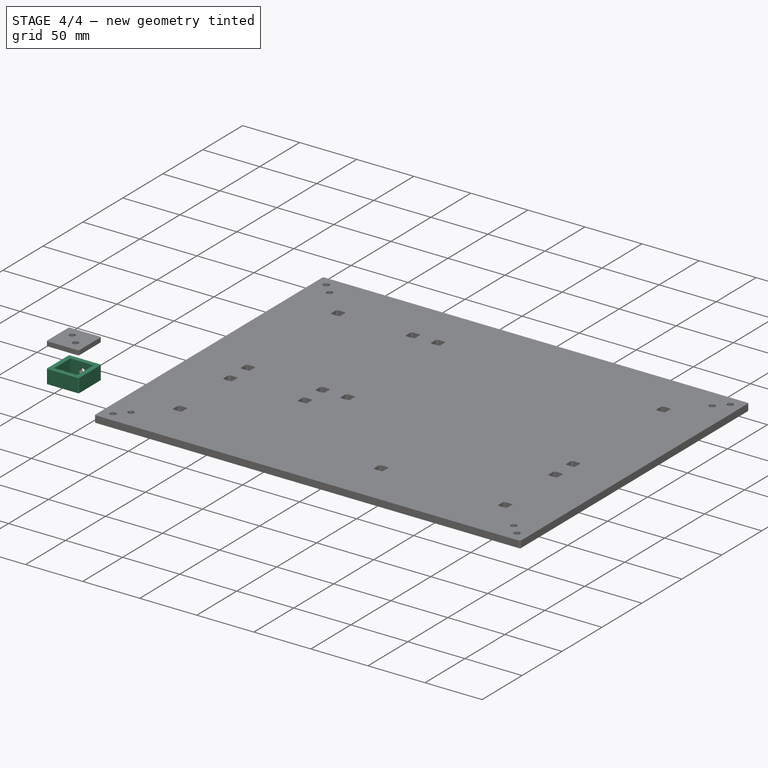
[diagram: stage 4 of 4 — iso view after this stage's code; geometry added in this stage tinted green]
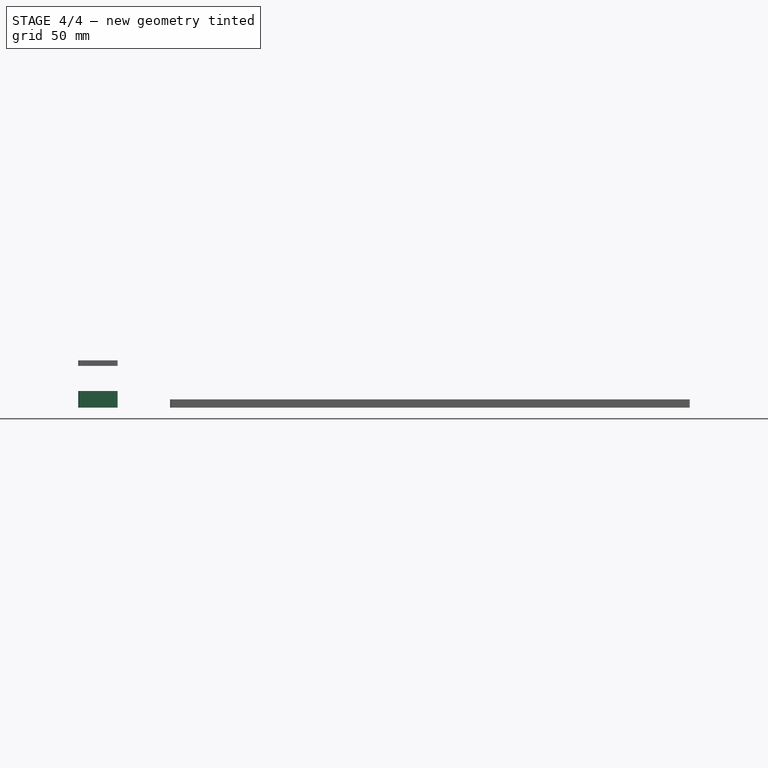
[diagram: stage 4 of 4 — front view after this stage's code; geometry added in this stage tinted green]
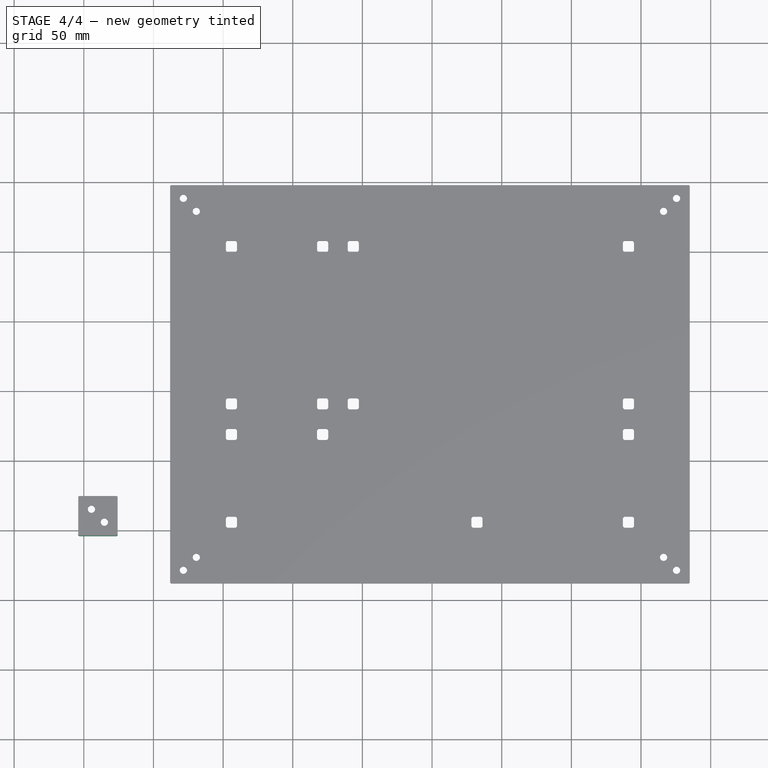
[diagram: stage 4 of 4 — top view after this stage's code; geometry added in this stage tinted green]
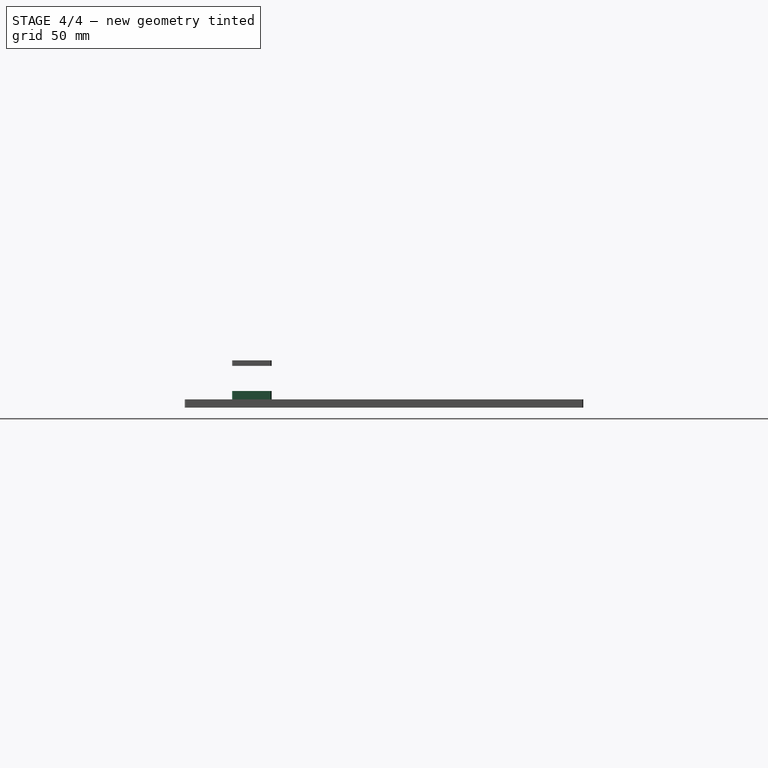
[diagram: stage 4 of 4 — right view after this stage's code; geometry added in this stage tinted green]
FEATURE [Part::MultiFuse] Fusion
  Refine = true
  Shapes = -> [Extrude002,Extrude003]
FEATURE [Part::Cut] Cut
  Base = -> Extrude
  Refine = true
  Tool = -> Fusion
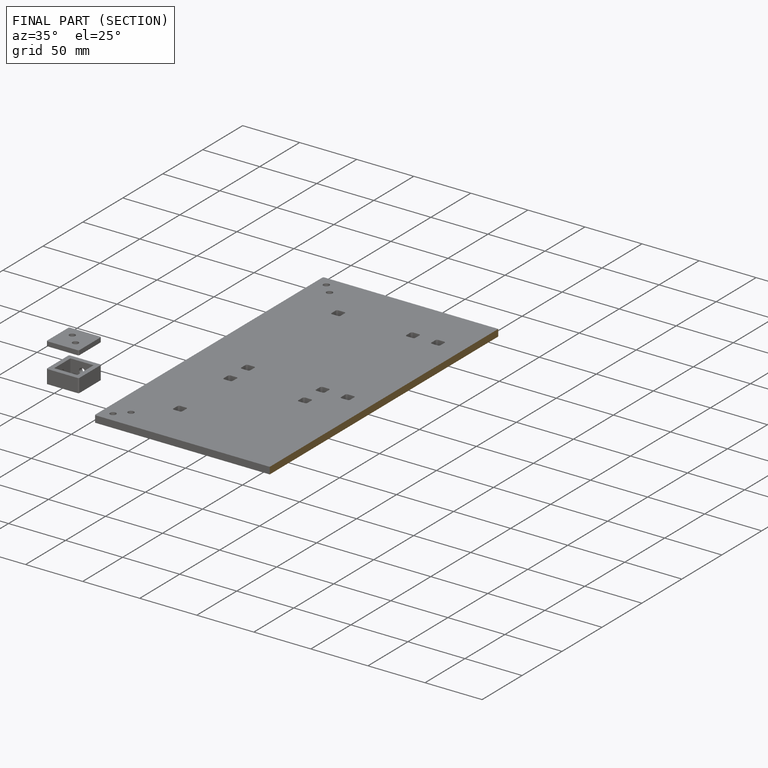
[diagram: finished part — half-section view (interior)]
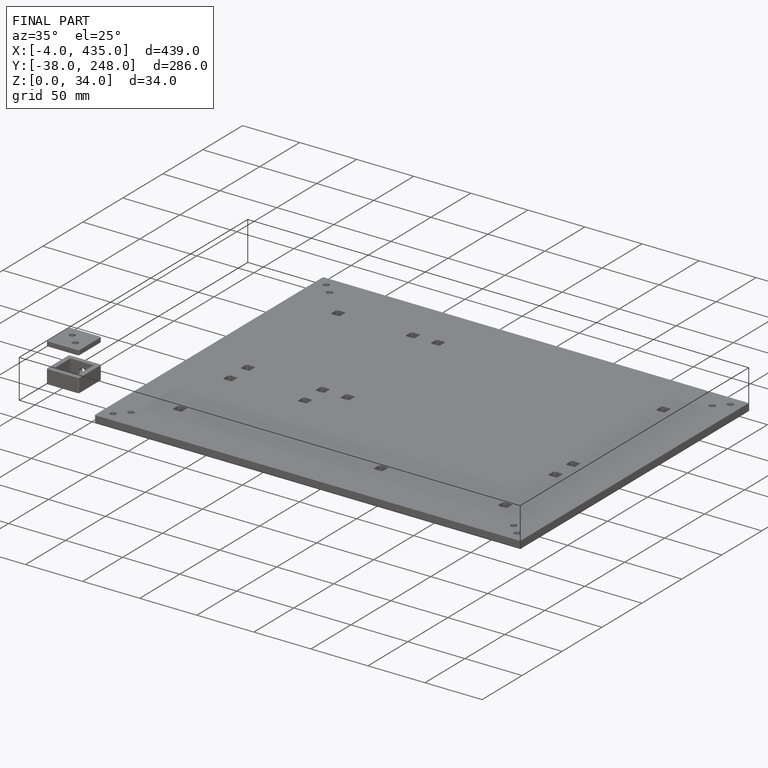
[diagram: finished part — iso view with bounding-box wireframe]
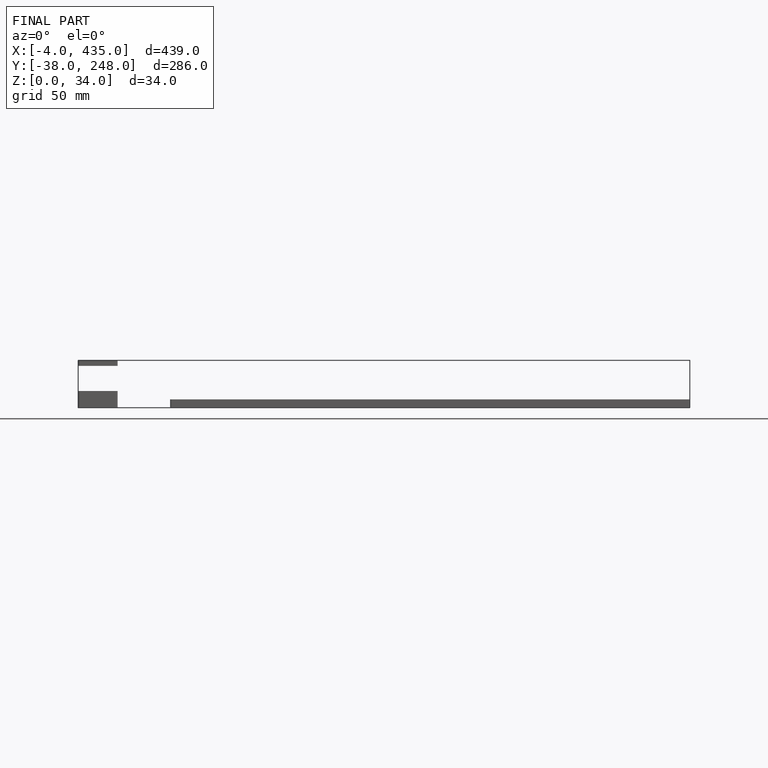
[diagram: finished part — front view with bounding-box wireframe]
